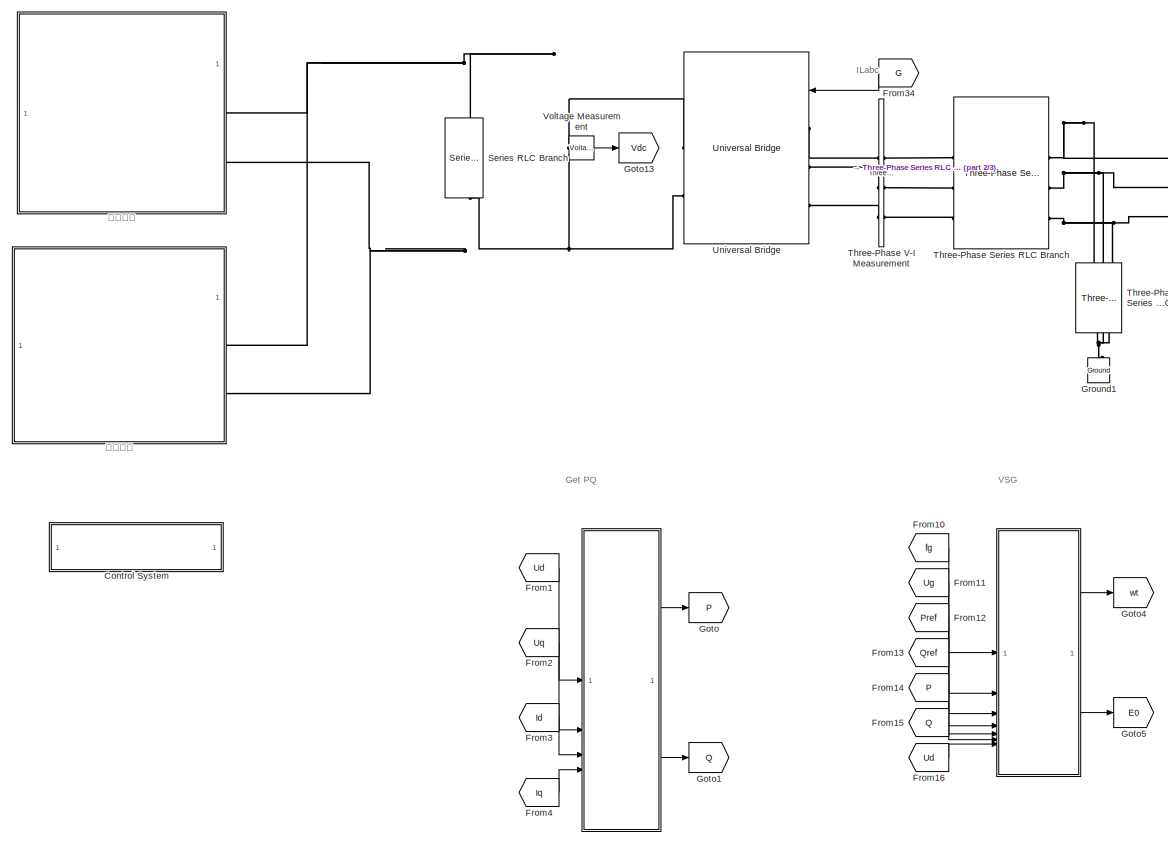
[diagram: root canvas - part 1/3, center side, full height]
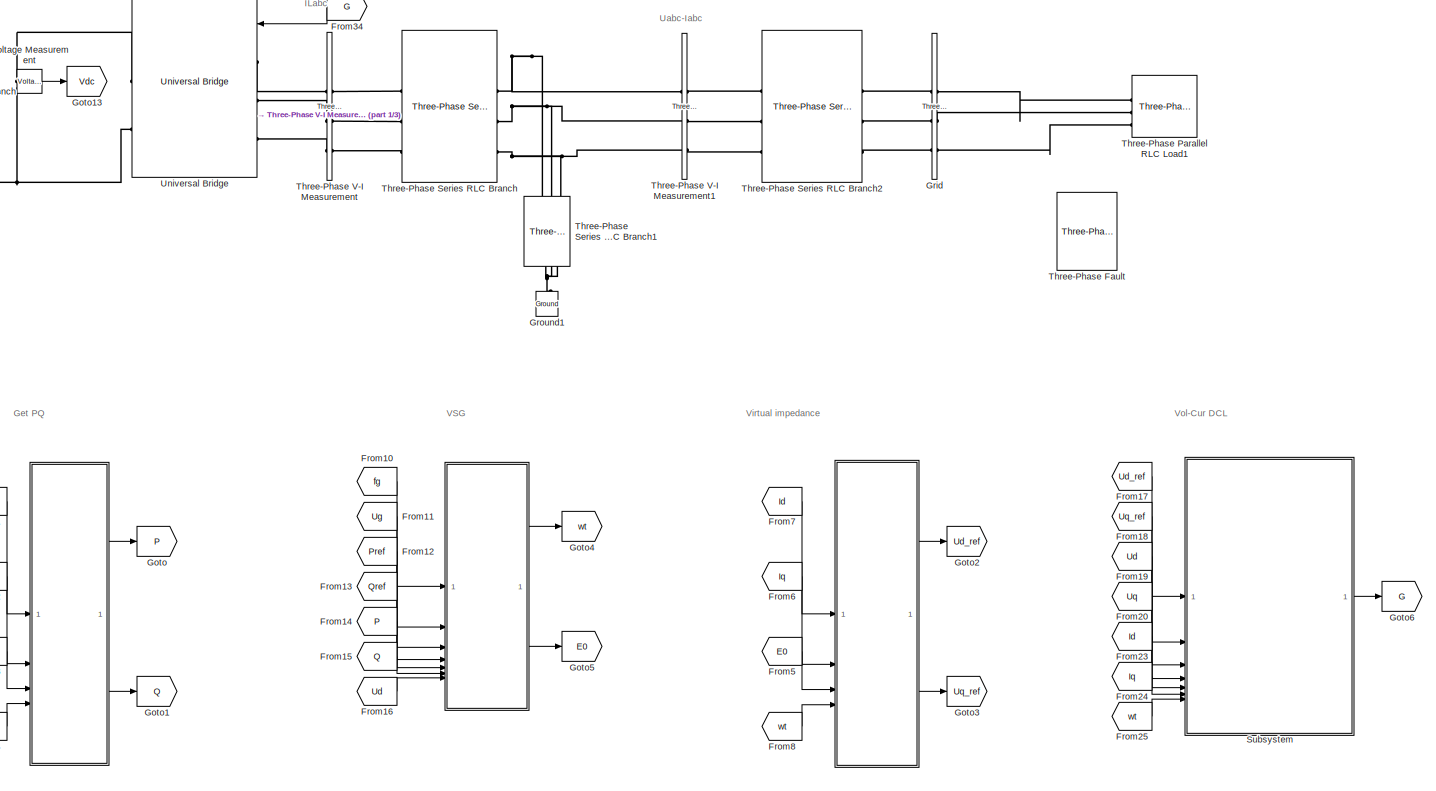
[diagram: root canvas - part 2/3, right side, full height]
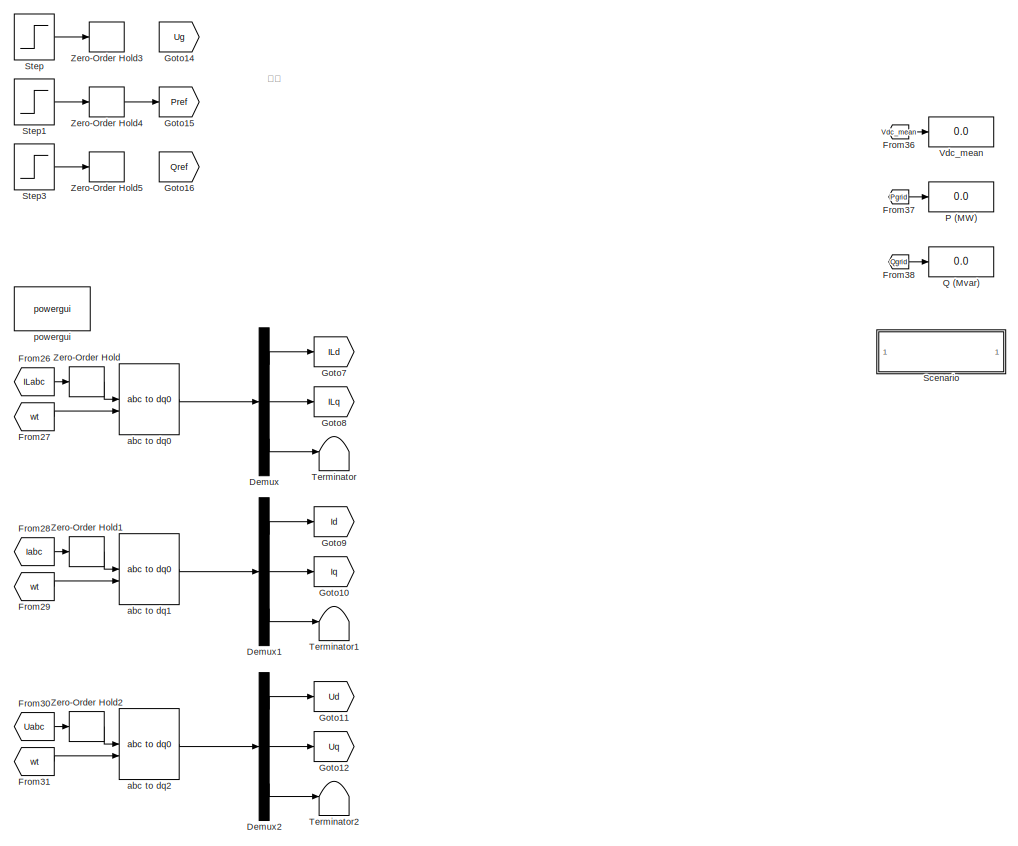
[diagram: root canvas - part 3/3, left side, full height]
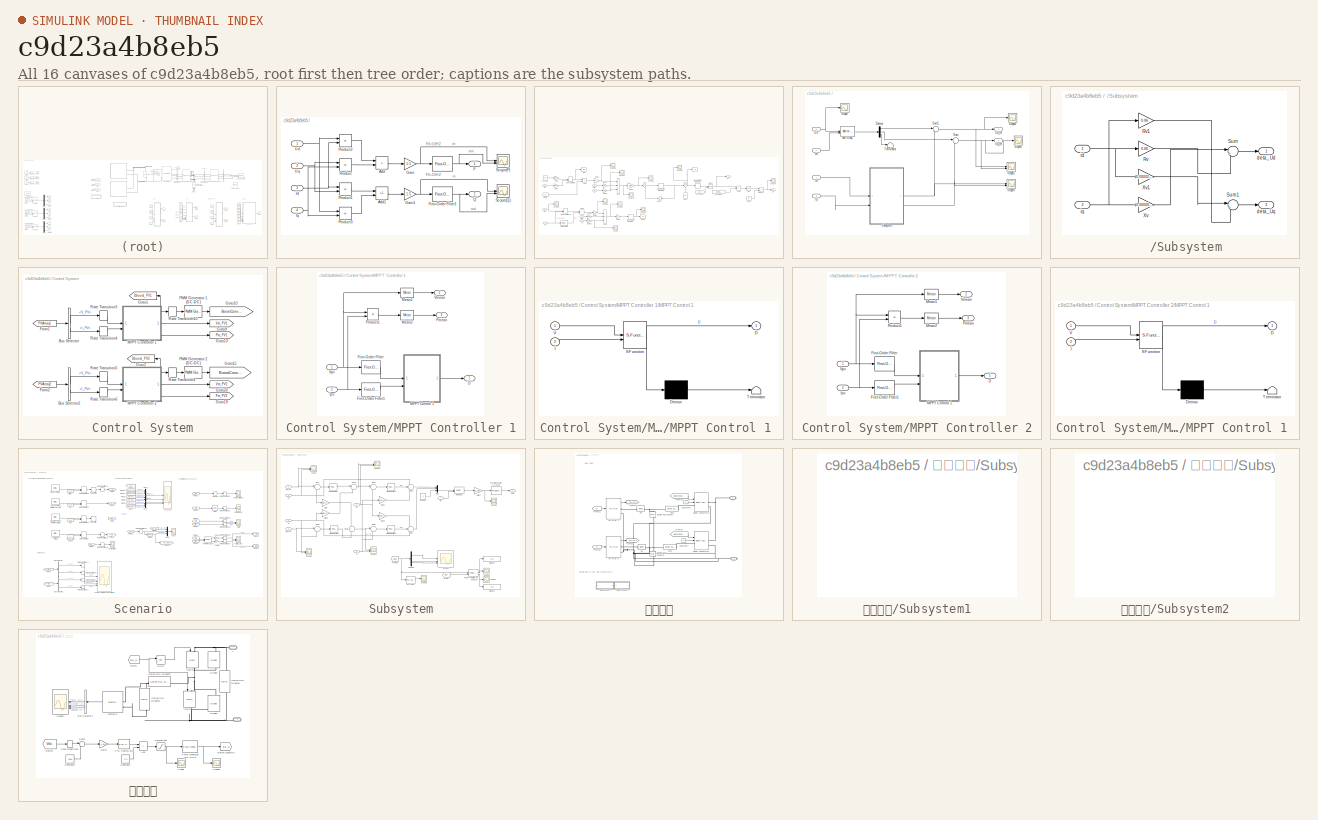
[diagram: thumbnail index - all 16 canvases of the model, root first then tree order]
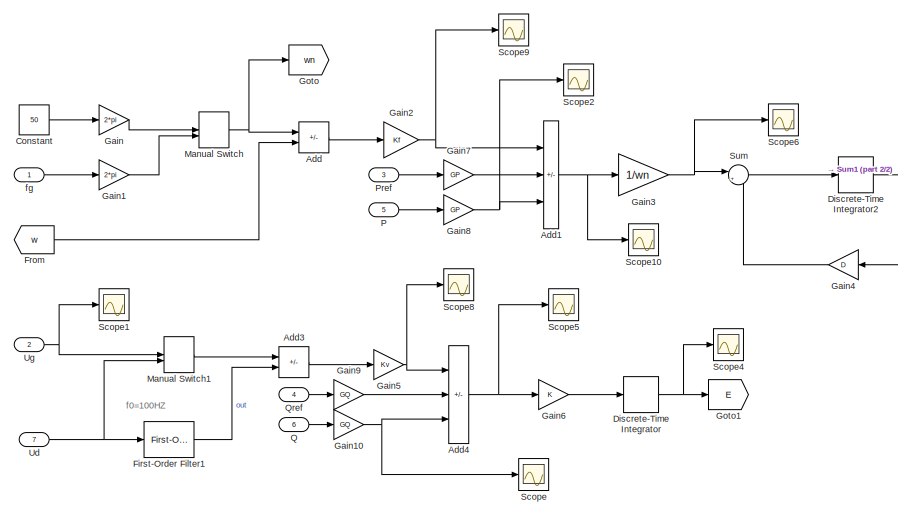
[diagram:    - part 1/2, left side, full height]
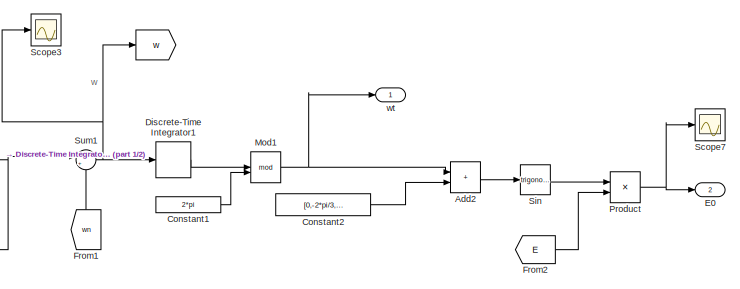
[diagram:    - part 2/2, middle right region]
MODEL slx_c9d23a4b8eb5
KIND model
CONFIG AbsTol = auto
CONFIG EnableMultiTasking = off
CONFIG FixedStep = 1e-6
CONFIG MaxStep = auto
CONFIG MinStep = auto
CONFIG RelTol = 1e-3
CONFIG SampleTimeConstraint = Unconstrained
CONFIG SolverName = FixedStepAuto
CONFIG StartTime = 0.0
CONFIG StopTime = 2
WORKSPACE source: mxarray member
WORKSPACE C = 0.0003
WORKSPACE D = 500
WORKSPACE GP = 0.6
WORKSPACE GQ = 20
WORKSPACE J = 2
WORKSPACE KQ = 0.06
WORKSPACE Kf = 80000
WORKSPACE Kv = 577
WORKSPACE L = 0.001
WORKSPACE Pref = 2000000
WORKSPACE Qref = 0
WORKSPACE Ts = 0.0001
WORKSPACE Ts_Power = 1e-06
WORKSPACE Ug = 400
WORKSPACE Vdc = 1000
WORKSPACE fsw = 20000
WORKSPACE t0 = 0.5
WORKSPACE tco = 1.3
WORKSPACE tf = 1.2
WORKSPACE wn = 314.159265359
BLOCK [SubSystem]  
BLOCK [SubSystem]   
BLOCK [SubSystem]    
BLOCK [Demux]    /Demux
  Outputs = 3
BLOCK [Inport]    /E0
  Description = Cont
  Port = 3
BLOCK [Inport]    /Id
BLOCK [Inport]    /Iq
  Port = 2
BLOCK [Scope]    /Scope
  Floating = off
  NumInputPorts = 1
  ScopeSpecificationString = Simulink.scopes.TimeScopeBlockCfg('CurrentConfiguration', extmgr.ConfigurationSet(extmgr.Configuration('Core','General UI',true),extmgr.Configuration('Core','Source UI',true),extmgr.Configuration('Sources','WiredSimulink',true),extmgr.Configuration('Visuals','Time Domain',true,'SerializedDisplays',{struct('MinYLimReal','-749.46903','MaxYLimReal','749.46397','YLabelReal','','MinYLimMag',' 0.00000',...<+1352ch>
BLOCK [Scope]    /Scope1
  Floating = off
  NumInputPorts = 2
  ScopeSpecificationString = Simulink.scopes.TimeScopeBlockCfg('CurrentConfiguration', extmgr.ConfigurationSet(extmgr.Configuration('Core','General UI',true),extmgr.Configuration('Core','Source UI',true),extmgr.Configuration('Sources','WiredSimulink',true,'DataLoggingVariableName','ScopeData1'),extmgr.Configuration('Visuals','Time Domain',true,'SerializedDisplays',{struct('MinYLimReal','-3363.40131','MaxYLimReal','3214.4683',...<+1389ch>
BLOCK [Scope]    /Scope2
  Floating = off
  NumInputPorts = 1
  ScopeSpecificationString = Simulink.scopes.TimeScopeBlockCfg('CurrentConfiguration', extmgr.ConfigurationSet(extmgr.Configuration('Core','General UI',true),extmgr.Configuration('Core','Source UI',true),extmgr.Configuration('Sources','WiredSimulink',true,'DataLoggingVariableName','ScopeData3'),extmgr.Configuration('Visuals','Time Domain',true,'SerializedDisplays',{struct('MinYLimReal','-261.84251','MaxYLimReal','1761.16129',...<+1410ch>
BLOCK [Scope]    /Scope3
  Floating = off
  NumInputPorts = 2
  ScopeSpecificationString = Simulink.scopes.TimeScopeBlockCfg('CurrentConfiguration', extmgr.ConfigurationSet(extmgr.Configuration('Core','General UI',true),extmgr.Configuration('Core','Source UI',true),extmgr.Configuration('Sources','WiredSimulink',true,'DataLoggingVariableName','ScopeData3'),extmgr.Configuration('Visuals','Time Domain',true),extmgr.Configuration('Tools','Plot Navigation',true),extmgr.Configuration('Tools',...<+58ch>
BLOCK [Scope]    /Scope4
  Floating = off
  NumInputPorts = 1
  ScopeSpecificationString = Simulink.scopes.TimeScopeBlockCfg('CurrentConfiguration', extmgr.ConfigurationSet(extmgr.Configuration('Core','General UI',true),extmgr.Configuration('Core','Source UI',true),extmgr.Configuration('Sources','WiredSimulink',true,'DataLoggingVariableName','ScopeData4'),extmgr.Configuration('Visuals','Time Domain',true),extmgr.Configuration('Tools','Plot Navigation',true),extmgr.Configuration('Tools',...<+40ch>
BLOCK [SubSystem]    /Subsystem
BLOCK [Gain]    /Subsystem/Rv
  Gain = 0.06
BLOCK [Gain]    /Subsystem/Rv1
  Gain = 0.06
BLOCK [Sum]    /Subsystem/Sum
  Inputs = |+-
BLOCK [Sum]    /Subsystem/Sum1
  Inputs = |++
BLOCK [Gain]    /Subsystem/Xv
  Gain = 0.000002*100*pi
BLOCK [Gain]    /Subsystem/Xv1
  Gain = 0.00002*100*pi
BLOCK [Outport]    /Subsystem/deta_Ud
BLOCK [Outport]    /Subsystem/deta_Uq
  Port = 2
BLOCK [Inport]    /Subsystem/id
BLOCK [Inport]    /Subsystem/iq
  Port = 2
BLOCK [Sum]    /Sum
  Inputs = |+-
BLOCK [Sum]    /Sum1
  Inputs = |++
BLOCK [Terminator]    /Terminator
BLOCK [Outport]    /Ud_ref
BLOCK [Outport]    /Uq_ref
  Port = 2
BLOCK [Reference]    /abc to dq1  REF=spsabctodq0Lib/abc to dq0
  LibrarySourceBlock = sps_lib/Control/abc to dq0
  SourceBlock = spsabctodq0Lib/abc to dq0
  SourceType = abc to dq0 Transformation
BLOCK [Inport]    /wt
  Port = 4
BLOCK [Goto]   / 
  GotoTag = w
BLOCK [Sum]   /Add
  IconShape = rectangular
  Inputs = +-
BLOCK [Sum]   /Add1
  IconShape = rectangular
  Inputs = ++-
BLOCK [Sum]   /Add2
  IconShape = rectangular
BLOCK [Sum]   /Add3
  IconShape = rectangular
  Inputs = +-
BLOCK [Sum]   /Add4
  IconShape = rectangular
  Inputs = ++-
BLOCK [Constant]   /Constant
  Value = 50
BLOCK [Constant]   /Constant1
  Value = 2*pi
BLOCK [Constant]   /Constant2
  Value = [0,-2*pi/3,2*pi/3]
BLOCK [DiscreteIntegrator]   /Discrete-Time Integrator
  ICPrevOutput = DiscIntNeverNeededParam
  ICPrevScaledInput = DiscIntNeverNeededParam
  InitialConditionSetting = Auto
  SampleTime = 1/fsw
  gainval = KQ
BLOCK [DiscreteIntegrator]   /Discrete-Time Integrator1
  ICPrevOutput = DiscIntNeverNeededParam
  ICPrevScaledInput = DiscIntNeverNeededParam
  InitialConditionSetting = Auto
  SampleTime = 1/fsw
BLOCK [DiscreteIntegrator]   /Discrete-Time Integrator2
  ICPrevOutput = DiscIntNeverNeededParam
  ICPrevScaledInput = DiscIntNeverNeededParam
  InitialConditionSetting = Auto
  SampleTime = 1/fsw
  gainval = 1/J
BLOCK [Outport]   /E0
  Port = 2
BLOCK [Reference]   /First-Order Filter1  REF=spsFirstOrderFilterLib/First-Order
Filter
  LibrarySourceBlock = sps_lib/Control/Filters/First-Order\nFilter
  SourceBlock = spsFirstOrderFilterLib/First-Order\nFilter
  SourceType = First-Order Filter
BLOCK [From]   /From
  GotoTag = w
BLOCK [From]   /From1
  GotoTag = wn
  NameLocation = right
BLOCK [From]   /From2
  GotoTag = E
BLOCK [Gain]   /Gain
  Gain = 2*pi
BLOCK [Gain]   /Gain1
  Gain = 2*pi
BLOCK [Gain]   /Gain10
  Gain = GQ
BLOCK [Gain]   /Gain2
  Gain = Kf
BLOCK [Gain]   /Gain3
  Gain = 1/wn
BLOCK [Gain]   /Gain4
  Gain = D
BLOCK [Gain]   /Gain5
  Gain = Kv
BLOCK [Gain]   /Gain6
BLOCK [Gain]   /Gain7
  Gain = GP
BLOCK [Gain]   /Gain8
  Gain = GP
BLOCK [Gain]   /Gain9
  Gain = GQ
BLOCK [Goto]   /Goto
  GotoTag = wn
BLOCK [Goto]   /Goto1
  GotoTag = E
BLOCK [ManualSwitch]   /Manual Switch
BLOCK [ManualSwitch]   /Manual Switch1
BLOCK [Math]   /Mod1
  Operator = mod
BLOCK [Inport]   /P
  Port = 5
BLOCK [Inport]   /Pref
  Port = 3
BLOCK [Product]   /Product
BLOCK [Inport]   /Q
  Port = 6
BLOCK [Inport]   /Qref
  Port = 4
BLOCK [Scope]   /Scope
  Floating = off
  NumInputPorts = 1
  ScopeSpecificationString = Simulink.scopes.TimeScopeBlockCfg('CurrentConfiguration', extmgr.ConfigurationSet(extmgr.Configuration('Core','General UI',true),extmgr.Configuration('Core','Source UI',true),extmgr.Configuration('Sources','WiredSimulink',true),extmgr.Configuration('Visuals','Time Domain',true,'SerializedDisplays',{struct('MinYLimReal','-1590374.99728','MaxYLimReal','732109.33048','YLabelReal','','MinYLimMag','   ...<+1453ch>
BLOCK [Scope]   /Scope1
  Floating = off
  NumInputPorts = 1
  ScopeSpecificationString = Simulink.scopes.TimeScopeBlockCfg('CurrentConfiguration', extmgr.ConfigurationSet(extmgr.Configuration('Core','General UI',true),extmgr.Configuration('Core','Source UI',true),extmgr.Configuration('Sources','WiredSimulink',true,'DataLoggingVariableName','ScopeData2'),extmgr.Configuration('Visuals','Time Domain',true,'SerializedDisplays',{struct('MinYLimReal','556.27973','MaxYLimReal','567.75726','Y...<+1458ch>
BLOCK [Scope]   /Scope10
  Floating = off
  NumInputPorts = 1
  ScopeSpecificationString = Simulink.scopes.TimeScopeBlockCfg('CurrentConfiguration', extmgr.ConfigurationSet(extmgr.Configuration('Core','General UI',true),extmgr.Configuration('Core','Source UI',true),extmgr.Configuration('Sources','WiredSimulink',true,'DataLoggingVariableName','ScopeData8'),extmgr.Configuration('Visuals','Time Domain',true,'SerializedDisplays',{struct('MinYLimReal','-29910.46347','MaxYLimReal','225526.568...<+1432ch>
BLOCK [Scope]   /Scope2
  Floating = off
  NumInputPorts = 1
  ScopeSpecificationString = Simulink.scopes.TimeScopeBlockCfg('CurrentConfiguration', extmgr.ConfigurationSet(extmgr.Configuration('Core','General UI',true),extmgr.Configuration('Core','Source UI',true),extmgr.Configuration('Sources','WiredSimulink',true,'DataLoggingVariableName','ScopeData2'),extmgr.Configuration('Visuals','Time Domain',true,'SerializedDisplays',{struct('MinYLimReal','-152.71549','MaxYLimReal','1374.43939',...<+1401ch>
BLOCK [Scope]   /Scope3
  Floating = off
  NumInputPorts = 1
  ScopeSpecificationString = Simulink.scopes.TimeScopeBlockCfg('CurrentConfiguration', extmgr.ConfigurationSet(extmgr.Configuration('Core','General UI',true),extmgr.Configuration('Core','Source UI',true),extmgr.Configuration('Sources','WiredSimulink',true,'DataLoggingVariableName','ScopeData3'),extmgr.Configuration('Visuals','Time Domain',true,'SerializedDisplays',{struct('MinYLimReal','304.49586','MaxYLimReal','389.60553','Y...<+1427ch>
BLOCK [Scope]   /Scope4
  Floating = off
  NumInputPorts = 1
  ScopeSpecificationString = Simulink.scopes.TimeScopeBlockCfg('CurrentConfiguration', extmgr.ConfigurationSet(extmgr.Configuration('Core','General UI',true),extmgr.Configuration('Core','Source UI',true),extmgr.Configuration('Sources','WiredSimulink',true,'DataLoggingVariableName','ScopeData4'),extmgr.Configuration('Visuals','Time Domain',true,'SerializedDisplays',{struct('MinYLimReal','-74.96486','MaxYLimReal','674.68371','Y...<+1393ch>
BLOCK [Scope]   /Scope5
  Floating = off
  NumInputPorts = 1
  ScopeSpecificationString = Simulink.scopes.TimeScopeBlockCfg('CurrentConfiguration', extmgr.ConfigurationSet(extmgr.Configuration('Core','General UI',true),extmgr.Configuration('Core','Source UI',true),extmgr.Configuration('Sources','WiredSimulink',true,'DataLoggingVariableName','ScopeData3'),extmgr.Configuration('Visuals','Time Domain',true,'SerializedDisplays',{struct('MinYLimReal','-7834420.56273','MaxYLimReal','6689537....<+1438ch>
BLOCK [Scope]   /Scope6
  Floating = off
  NumInputPorts = 1
  ScopeSpecificationString = Simulink.scopes.TimeScopeBlockCfg('CurrentConfiguration', extmgr.ConfigurationSet(extmgr.Configuration('Core','General UI',true),extmgr.Configuration('Core','Source UI',true),extmgr.Configuration('Sources','WiredSimulink',true,'DataLoggingVariableName','ScopeData4'),extmgr.Configuration('Visuals','Time Domain',true,'SerializedDisplays',{struct('MinYLimReal','-147.73046','MaxYLimReal','202.19448','...<+1378ch>
BLOCK [Scope]   /Scope7
  Floating = off
  NumInputPorts = 1
  ScopeSpecificationString = Simulink.scopes.TimeScopeBlockCfg('CurrentConfiguration', extmgr.ConfigurationSet(extmgr.Configuration('Core','General UI',true),extmgr.Configuration('Core','Source UI',true),extmgr.Configuration('Sources','WiredSimulink',true,'DataLoggingVariableName','ScopeData5'),extmgr.Configuration('Visuals','Time Domain',true,'SerializedDisplays',{struct('MinYLimReal','-2050.02752','MaxYLimReal','2049.51479'...<+1485ch>
BLOCK [Scope]   /Scope8
  Floating = off
  NumInputPorts = 1
  ScopeSpecificationString = Simulink.scopes.TimeScopeBlockCfg('CurrentConfiguration', extmgr.ConfigurationSet(extmgr.Configuration('Core','General UI',true),extmgr.Configuration('Core','Source UI',true),extmgr.Configuration('Sources','WiredSimulink',true,'DataLoggingVariableName','ScopeData6'),extmgr.Configuration('Visuals','Time Domain',true,'SerializedDisplays',{struct('MinYLimReal','-178637.79274','MaxYLimReal','436546.10...<+1402ch>
BLOCK [Scope]   /Scope9
  Floating = off
  NumInputPorts = 1
  ScopeSpecificationString = Simulink.scopes.TimeScopeBlockCfg('CurrentConfiguration', extmgr.ConfigurationSet(extmgr.Configuration('Core','General UI',true),extmgr.Configuration('Core','Source UI',true),extmgr.Configuration('Sources','WiredSimulink',true,'DataLoggingVariableName','ScopeData7'),extmgr.Configuration('Visuals','Time Domain',true,'SerializedDisplays',{struct('MinYLimReal','-74841.31634','MaxYLimReal','12675.9902...<+1413ch>
BLOCK [Trigonometry]   /Sin
BLOCK [Sum]   /Sum
  Inputs = |+-
BLOCK [Sum]   /Sum1
  Inputs = |++
BLOCK [Inport]   /Ud
  Port = 7
BLOCK [Inport]   /Ug
  Port = 2
BLOCK [Inport]   /fg
BLOCK [Outport]   /wt
BLOCK [Reference]  /   REF=spsFirstOrderFilterLib/First-Order
Filter
  LibrarySourceBlock = sps_lib/Control/Filters/First-Order\nFilter
  SourceBlock = spsFirstOrderFilterLib/First-Order\nFilter
  SourceType = First-Order Filter
BLOCK [Sum]  /Add
  IconShape = rectangular
BLOCK [Sum]  /Add1
  IconShape = rectangular
  Inputs = +-
BLOCK [Reference]  /First-Order Filter1  REF=spsFirstOrderFilterLib/First-Order
Filter
  LibrarySourceBlock = sps_lib/Control/Filters/First-Order\nFilter
  SourceBlock = spsFirstOrderFilterLib/First-Order\nFilter
  SourceType = First-Order Filter
BLOCK [Gain]  /Gain
  Gain = 1.5
BLOCK [Gain]  /Gain1
  Gain = 1.5
BLOCK [Inport]  /Id
  Port = 3
BLOCK [Inport]  /Iq
  Port = 4
BLOCK [Outport]  /P
BLOCK [Product]  /Product
BLOCK [Product]  /Product1
BLOCK [Product]  /Product2
BLOCK [Product]  /Product3
BLOCK [Outport]  /Q
  Port = 2
BLOCK [Scope]  /Scope(P)
  Floating = off
  NumInputPorts = 2
  ScopeSpecificationString = Simulink.scopes.TimeScopeBlockCfg('CurrentConfiguration', extmgr.ConfigurationSet(extmgr.Configuration('Core','General UI',true),extmgr.Configuration('Core','Source UI',true),extmgr.Configuration('Sources','WiredSimulink',true,'DataLoggingVariableName','ScopeData1'),extmgr.Configuration('Visuals','Time Domain',true),extmgr.Configuration('Tools','Plot Navigation',true),extmgr.Configuration('Tools',...<+58ch>
BLOCK [Scope]  /Scope(Q)
  Floating = off
  NumInputPorts = 2
  ScopeSpecificationString = Simulink.scopes.TimeScopeBlockCfg('CurrentConfiguration', extmgr.ConfigurationSet(extmgr.Configuration('Core','General UI',true),extmgr.Configuration('Core','Source UI',true),extmgr.Configuration('Sources','WiredSimulink',true),extmgr.Configuration('Visuals','Time Domain',true,'SerializedDisplays',{struct('MinYLimReal','-67310.48556','MaxYLimReal','51991.39138','YLabelReal','','MinYLimMag','   0.0...<+1391ch>
BLOCK [Inport]  /Ud
BLOCK [Inport]  /Uq
  Port = 2
BLOCK [SubSystem] Control System
BLOCK [BusSelector] Control System/Bus Selector
  OutputSignals = V_PV,I_PV
BLOCK [BusSelector] Control System/Bus Selector2
  OutputSignals = V_PV,I_PV
BLOCK [From] Control System/From1
  GotoTag = PVArray1
  TagVisibility = global
BLOCK [From] Control System/From2
  GotoTag = PVArray2
  TagVisibility = global
BLOCK [Goto] Control System/Goto1
  GotoTag = Dboost_PV1
  TagVisibility = global
BLOCK [Goto] Control System/Goto10
  GotoTag = BoostConverter1
  TagVisibility = global
BLOCK [Goto] Control System/Goto13
  GotoTag = Pm_PV1
  TagVisibility = global
BLOCK [Goto] Control System/Goto15
  GotoTag = BoostConverter2
  TagVisibility = global
BLOCK [Goto] Control System/Goto19
  GotoTag = Pm_PV2
  TagVisibility = global
BLOCK [Goto] Control System/Goto2
  GotoTag = Dboost_PV2
  TagVisibility = global
BLOCK [Goto] Control System/Goto20
  GotoTag = Vm_PV2
  TagVisibility = global
BLOCK [Goto] Control System/Goto9
  GotoTag = Vm_PV1
  TagVisibility = global
BLOCK [SubSystem] Control System/MPPT Controller 1
BLOCK [Outport] Control System/MPPT Controller 1/D
  VectorParamsAs1DForOutWhenUnconnected = off
BLOCK [Reference] Control System/MPPT Controller 1/First-Order Filter  REF=spsFirstOrderFilterLib/First-Order
Filter
  LibrarySourceBlock = sps_lib/Control/Filters/First-Order\nFilter
  SourceBlock = spsFirstOrderFilterLib/First-Order\nFilter
  SourceType = First-Order Filter
BLOCK [Reference] Control System/MPPT Controller 1/First-Order Filter1  REF=spsFirstOrderFilterLib/First-Order
Filter
  LibrarySourceBlock = sps_lib/Control/Filters/First-Order\nFilter
  SourceBlock = spsFirstOrderFilterLib/First-Order\nFilter
  SourceType = First-Order Filter
BLOCK [Inport] Control System/MPPT Controller 1/Ipv
  Port = 2
BLOCK [SubSystem] Control System/MPPT Controller 1/MPPT Control 1 
  ErrorFcn = Stateflow.Translate.translate
  NameLocation = top
  PermitHierarchicalResolution = ExplicitOnly
  SFBlockType = MATLAB Function
  TreatAsAtomicUnit = on
BLOCK [Demux] Control System/MPPT Controller 1/MPPT Control 1 / Demux 
  Outputs = 1
BLOCK [S-Function] Control System/MPPT Controller 1/MPPT Control 1 / SFunction 
  EnableBusSupport = on
  FunctionName = sf_sfun
  Parameters = Dinit,Dmax,Dmin,deltaD
  PortCounts = [2 2]
  SFcnIsStateOwnerBlock = off
  SFunctionDeploymentMode = off
  Tag = Stateflow S-Function 1
BLOCK [Terminator] Control System/MPPT Controller 1/MPPT Control 1 / Terminator 
BLOCK [Outport] Control System/MPPT Controller 1/MPPT Control 1 /D
  VectorParamsAs1DForOutWhenUnconnected = off
BLOCK [Inport] Control System/MPPT Controller 1/MPPT Control 1 /I
  Port = 2
BLOCK [Inport] Control System/MPPT Controller 1/MPPT Control 1 /V
BLOCK [Reference] Control System/MPPT Controller 1/Mean1  REF=spsMeanLib/Mean
  LibrarySourceBlock = sps_lib/Sensors and Measurements/Mean
  SourceBlock = spsMeanLib/Mean
  SourceType = Mean
BLOCK [Reference] Control System/MPPT Controller 1/Mean2  REF=spsMeanLib/Mean
  LibrarySourceBlock = sps_lib/Sensors and Measurements/Mean
  SourceBlock = spsMeanLib/Mean
  SourceType = Mean
BLOCK [Outport] Control System/MPPT Controller 1/Pmean
  Port = 3
  VectorParamsAs1DForOutWhenUnconnected = off
BLOCK [Product] Control System/MPPT Controller 1/Product1
BLOCK [Outport] Control System/MPPT Controller 1/Vmean
  Port = 2
  VectorParamsAs1DForOutWhenUnconnected = off
BLOCK [Inport] Control System/MPPT Controller 1/Vpv
BLOCK [SubSystem] Control System/MPPT Controller 2
BLOCK [Outport] Control System/MPPT Controller 2/D
  VectorParamsAs1DForOutWhenUnconnected = off
BLOCK [Reference] Control System/MPPT Controller 2/First-Order Filter  REF=spsFirstOrderFilterLib/First-Order
Filter
  LibrarySourceBlock = sps_lib/Control/Filters/First-Order\nFilter
  SourceBlock = spsFirstOrderFilterLib/First-Order\nFilter
  SourceType = First-Order Filter
BLOCK [Reference] Control System/MPPT Controller 2/First-Order Filter1  REF=spsFirstOrderFilterLib/First-Order
Filter
  LibrarySourceBlock = sps_lib/Control/Filters/First-Order\nFilter
  SourceBlock = spsFirstOrderFilterLib/First-Order\nFilter
  SourceType = First-Order Filter
BLOCK [Inport] Control System/MPPT Controller 2/Ipv
  Port = 2
BLOCK [SubSystem] Control System/MPPT Controller 2/MPPT Control 1 
  ErrorFcn = Stateflow.Translate.translate
  NameLocation = top
  PermitHierarchicalResolution = ExplicitOnly
  SFBlockType = MATLAB Function
  TreatAsAtomicUnit = on
BLOCK [Demux] Control System/MPPT Controller 2/MPPT Control 1 / Demux 
  Outputs = 1
BLOCK [S-Function] Control System/MPPT Controller 2/MPPT Control 1 / SFunction 
  EnableBusSupport = on
  FunctionName = sf_sfun
  Parameters = Dinit,Dmax,Dmin,deltaD
  PortCounts = [2 2]
  SFcnIsStateOwnerBlock = off
  SFunctionDeploymentMode = off
  Tag = Stateflow S-Function 4
BLOCK [Terminator] Control System/MPPT Controller 2/MPPT Control 1 / Terminator 
BLOCK [Outport] Control System/MPPT Controller 2/MPPT Control 1 /D
  VectorParamsAs1DForOutWhenUnconnected = off
BLOCK [Inport] Control System/MPPT Controller 2/MPPT Control 1 /I
  Port = 2
BLOCK [Inport] Control System/MPPT Controller 2/MPPT Control 1 /V
BLOCK [Reference] Control System/MPPT Controller 2/Mean1  REF=spsMeanLib/Mean
  LibrarySourceBlock = sps_lib/Sensors and Measurements/Mean
  SourceBlock = spsMeanLib/Mean
  SourceType = Mean
BLOCK [Reference] Control System/MPPT Controller 2/Mean2  REF=spsMeanLib/Mean
  LibrarySourceBlock = sps_lib/Sensors and Measurements/Mean
  SourceBlock = spsMeanLib/Mean
  SourceType = Mean
BLOCK [Outport] Control System/MPPT Controller 2/Pmean
  Port = 3
  VectorParamsAs1DForOutWhenUnconnected = off
BLOCK [Product] Control System/MPPT Controller 2/Product1
BLOCK [Outport] Control System/MPPT Controller 2/Vmean
  Port = 2
  VectorParamsAs1DForOutWhenUnconnected = off
BLOCK [Inport] Control System/MPPT Controller 2/Vpv
BLOCK [Reference] Control System/PWM Generator 1 (DC-DC)  REF=spsPWMGeneratorDCDCLib/PWM Generator
(DC-DC)
  LibrarySourceBlock = sps_lib/Power Electronics/Power Electronics Control/PWM Generator\n(DC-DC)
  NameLocation = top
  SourceBlock = spsPWMGeneratorDCDCLib/PWM Generator\n(DC-DC)
  SourceType = PWM Generator (DC-DC)
BLOCK [Reference] Control System/PWM Generator 2 (DC-DC)  REF=spsPWMGeneratorDCDCLib/PWM Generator
(DC-DC)
  LibrarySourceBlock = sps_lib/Power Electronics/Power Electronics Control/PWM Generator\n(DC-DC)
  NameLocation = top
  SourceBlock = spsPWMGeneratorDCDCLib/PWM Generator\n(DC-DC)
  SourceType = PWM Generator (DC-DC)
BLOCK [RateTransition] Control System/Rate Transition1
  OutPortSampleTime = Ts_Power
BLOCK [RateTransition] Control System/Rate Transition10
  OutPortSampleTime = Ts_Power
BLOCK [RateTransition] Control System/Rate Transition3
  OutPortSampleTime = Ts
BLOCK [RateTransition] Control System/Rate Transition4
  OutPortSampleTime = Ts
BLOCK [RateTransition] Control System/Rate Transition5
  OutPortSampleTime = Ts
BLOCK [RateTransition] Control System/Rate Transition6
  OutPortSampleTime = Ts
BLOCK [Demux] Demux
  Outputs = 3
BLOCK [Demux] Demux1
  Outputs = 3
BLOCK [Demux] Demux2
  Outputs = 3
BLOCK [From] From1
  GotoTag = Ud
BLOCK [From] From10
  GotoTag = fg
BLOCK [From] From11
  GotoTag = Ug
BLOCK [From] From12
  GotoTag = Pref
BLOCK [From] From13
  GotoTag = Qref
BLOCK [From] From14
  GotoTag = P
BLOCK [From] From15
  GotoTag = Q
BLOCK [From] From16
  GotoTag = Ud
BLOCK [From] From17
  GotoTag = Ud_ref
BLOCK [From] From18
  GotoTag = Uq_ref
BLOCK [From] From19
  GotoTag = Ud
BLOCK [From] From2
  GotoTag = Uq
BLOCK [From] From20
  GotoTag = Uq
BLOCK [From] From23
  GotoTag = Id
BLOCK [From] From24
  GotoTag = Iq
BLOCK [From] From25
  GotoTag = wt
BLOCK [From] From26
  GotoTag = ILabc
  TagVisibility = global
BLOCK [From] From27
  GotoTag = wt
BLOCK [From] From28
  GotoTag = Iabc
  TagVisibility = global
BLOCK [From] From29
  GotoTag = wt
BLOCK [From] From3
  GotoTag = Id
BLOCK [From] From30
  GotoTag = Uabc
  TagVisibility = global
BLOCK [From] From31
  GotoTag = wt
BLOCK [From] From34
  GotoTag = G
  NameLocation = top
BLOCK [From] From36
  GotoTag = Vdc_mean
  TagVisibility = global
BLOCK [From] From37
  GotoTag = Pgrid
  TagVisibility = global
BLOCK [From] From38
  GotoTag = Qgrid
  TagVisibility = global
BLOCK [From] From4
  GotoTag = Iq
BLOCK [From] From5
  GotoTag = E0
BLOCK [From] From6
  GotoTag = Iq
BLOCK [From] From7
  GotoTag = Id
BLOCK [From] From8
  GotoTag = wt
BLOCK [Goto] Goto
  GotoTag = P
BLOCK [Goto] Goto1
  GotoTag = Q
BLOCK [Goto] Goto10
  GotoTag = Iq
BLOCK [Goto] Goto11
  GotoTag = Ud
BLOCK [Goto] Goto12
  GotoTag = Uq
BLOCK [Goto] Goto13
  GotoTag = Vdc
BLOCK [Goto] Goto14
  GotoTag = Ug
BLOCK [Goto] Goto15
  GotoTag = Pref
BLOCK [Goto] Goto16
  GotoTag = Qref
BLOCK [Goto] Goto2
  GotoTag = Ud_ref
BLOCK [Goto] Goto3
  GotoTag = Uq_ref
BLOCK [Goto] Goto4
  GotoTag = wt
BLOCK [Goto] Goto5
  GotoTag = E0
BLOCK [Goto] Goto6
  GotoTag = G
BLOCK [Goto] Goto7
  GotoTag = ILd
BLOCK [Goto] Goto8
  GotoTag = ILq
BLOCK [Goto] Goto9
  GotoTag = Id
BLOCK [Reference] Grid  REF=spsThreePhaseVIMeasurementLib/Three-Phase
V-I Measurement
  LibrarySourceBlock = sps_lib/Sensors and Measurements/Three-Phase\nV-I Measurement
  SourceBlock = spsThreePhaseVIMeasurementLib/Three-Phase\nV-I Measurement
  SourceType = Three-Phase VI Measurement
BLOCK [Reference] Ground1  REF=spsGroundLib/Ground
  LibrarySourceBlock = sps_lib/Utilities/Ground
  NameLocation = right
  SourceBlock = spsGroundLib/Ground
  SourceType = Ground
BLOCK [Display] P (MW)
  Decimation = 200
  Format = bank
BLOCK [Display] Q (Mvar)
  Decimation = 200
  Format = bank
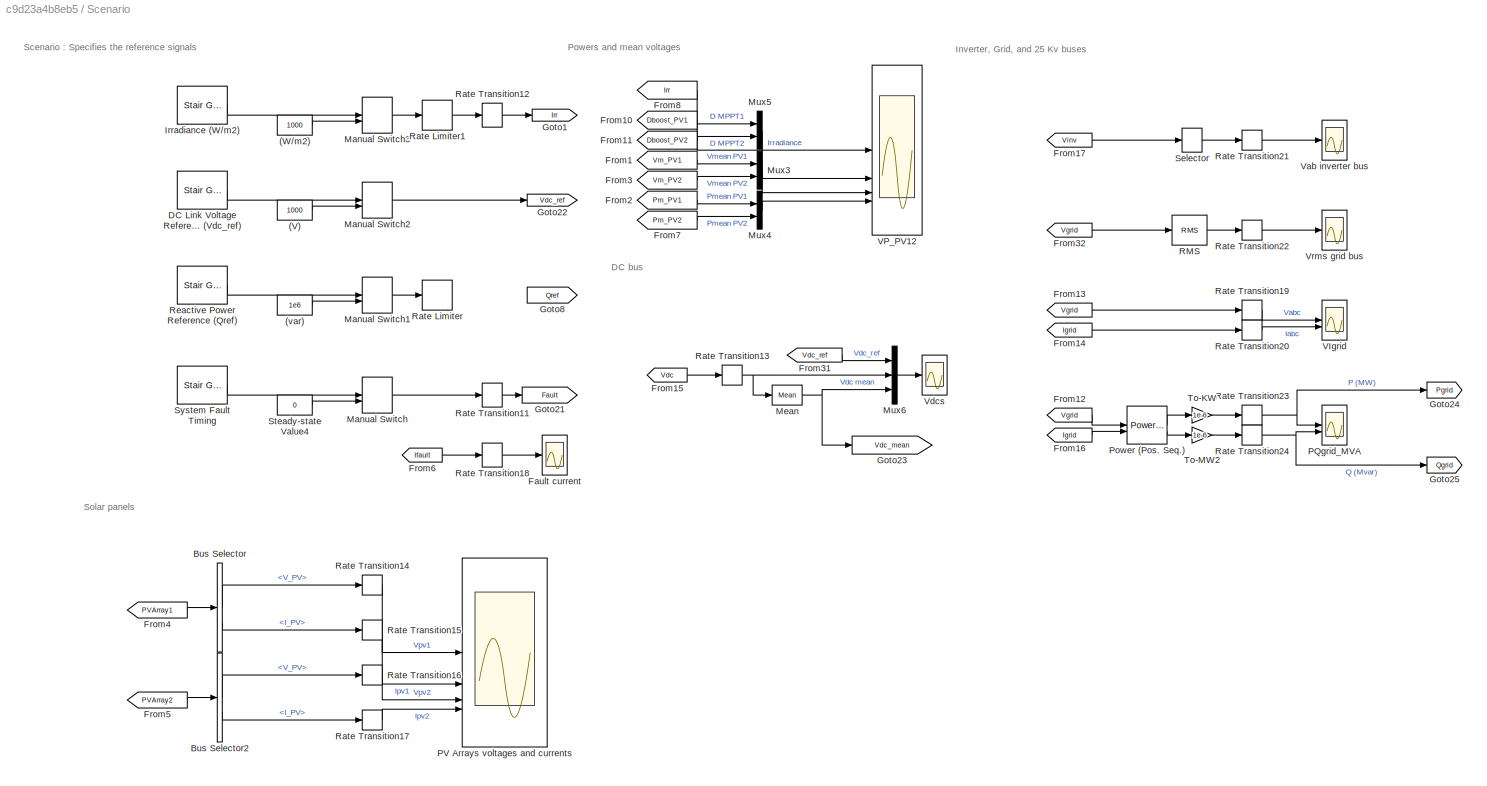
BLOCK [SubSystem] Scenario
BLOCK [Constant] Scenario/(V)
  Value = 1000
BLOCK [Constant] Scenario/(W//m2)
  Value = 1000
BLOCK [Constant] Scenario/(var)
  Value = 1e6
BLOCK [BusSelector] Scenario/Bus Selector
  OutputSignals = V_PV,I_PV
BLOCK [BusSelector] Scenario/Bus Selector2
  OutputSignals = V_PV,I_PV
BLOCK [Reference] Scenario/DC Link Voltage Reference (Vdc_ref)  REF=spsStairGeneratorLib/Stair
Generator
  LibrarySourceBlock = sps_lib/Sources/Signal Generator Sources/Stair\nGenerator
  SourceBlock = spsStairGeneratorLib/Stair\nGenerator
  SourceType = Stair Generator
BLOCK [Scope] Scenario/Fault current
  Floating = off
  NumInputPorts = 1
  ScopeSpecificationString = Simulink.scopes.TimeScopeBlockCfg('CurrentConfiguration', extmgr.ConfigurationSet(extmgr.Configuration('Core','General UI',true),extmgr.Configuration('Core','Source UI',true),extmgr.Configuration('Sources','WiredSimulink',true,'DataLoggingVariableName','ScopeData2','DataLoggingSaveFormat','StructureWithTime','DataLoggingDecimation','100','DataLogging',true),extmgr.Configuration('Visuals','Time Dom...<+1617ch>
BLOCK [From] Scenario/From1
  GotoTag = Vm_PV1
  TagVisibility = global
BLOCK [From] Scenario/From10
  GotoTag = Dboost_PV1
  TagVisibility = global
BLOCK [From] Scenario/From11
  GotoTag = Dboost_PV2
  TagVisibility = global
BLOCK [From] Scenario/From12
  GotoTag = Vgrid
  TagVisibility = global
BLOCK [From] Scenario/From13
  GotoTag = Vgrid
  TagVisibility = global
BLOCK [From] Scenario/From14
  GotoTag = Igrid
  TagVisibility = global
BLOCK [From] Scenario/From15
  GotoTag = Vdc
BLOCK [From] Scenario/From16
  GotoTag = Igrid
  TagVisibility = global
BLOCK [From] Scenario/From17
  GotoTag = Vinv
  TagVisibility = global
BLOCK [From] Scenario/From2
  GotoTag = Pm_PV1
  TagVisibility = global
BLOCK [From] Scenario/From3
  GotoTag = Vm_PV2
  TagVisibility = global
BLOCK [From] Scenario/From31
  GotoTag = Vdc_ref
  TagVisibility = global
BLOCK [From] Scenario/From32
  GotoTag = Vgrid
  TagVisibility = global
BLOCK [From] Scenario/From4
  GotoTag = PVArray1
  TagVisibility = global
BLOCK [From] Scenario/From5
  GotoTag = PVArray2
  TagVisibility = global
BLOCK [From] Scenario/From6
  GotoTag = Ifault
BLOCK [From] Scenario/From7
  GotoTag = Pm_PV2
  TagVisibility = global
BLOCK [From] Scenario/From8
  GotoTag = Irr
  TagVisibility = global
BLOCK [Goto] Scenario/Goto1
  GotoTag = Irr
  TagVisibility = global
BLOCK [Goto] Scenario/Goto21
  GotoTag = Fault
  TagVisibility = global
BLOCK [Goto] Scenario/Goto22
  GotoTag = Vdc_ref
  TagVisibility = global
BLOCK [Goto] Scenario/Goto23
  GotoTag = Vdc_mean
  TagVisibility = global
BLOCK [Goto] Scenario/Goto24
  GotoTag = Pgrid
  TagVisibility = global
BLOCK [Goto] Scenario/Goto25
  GotoTag = Qgrid
  TagVisibility = global
BLOCK [Goto] Scenario/Goto8
  GotoTag = Qref
  TagVisibility = global
BLOCK [Reference] Scenario/Irradiance (W//m2)  REF=spsStairGeneratorLib/Stair
Generator
  LibrarySourceBlock = sps_lib/Sources/Signal Generator Sources/Stair\nGenerator
  SourceBlock = spsStairGeneratorLib/Stair\nGenerator
  SourceType = Stair Generator
BLOCK [ManualSwitch] Scenario/Manual Switch
BLOCK [ManualSwitch] Scenario/Manual Switch1
  CurrentSetting = 0
BLOCK [ManualSwitch] Scenario/Manual Switch2
  CurrentSetting = 0
BLOCK [ManualSwitch] Scenario/Manual Switch3
  CurrentSetting = 0
BLOCK [Reference] Scenario/Mean  REF=spsMeanLib/Mean
  LibrarySourceBlock = sps_lib/Sensors and Measurements/Mean
  SourceBlock = spsMeanLib/Mean
  SourceType = Mean
BLOCK [Mux] Scenario/Mux3
  DisplayOption = bar
  Inputs = 2
BLOCK [Mux] Scenario/Mux4
  DisplayOption = bar
  Inputs = 2
BLOCK [Mux] Scenario/Mux5
  DisplayOption = bar
  Inputs = 2
BLOCK [Mux] Scenario/Mux6
  DisplayOption = bar
  Inputs = 3
BLOCK [Scope] Scenario/PQgrid_MVA
  Floating = off
  NumInputPorts = 2
  ScopeSpecificationString = Simulink.scopes.TimeScopeBlockCfg('CurrentConfiguration', extmgr.ConfigurationSet(extmgr.Configuration('Core','General UI',true),extmgr.Configuration('Core','Source UI',true),extmgr.Configuration('Sources','WiredSimulink',true,'DataLoggingVariableName','ScopeData4','DataLogging',true,'DataLoggingSaveFormat','StructureWithTime'),extmgr.Configuration('Visuals','Time Domain',true,'SerializedDisplays'...<+2166ch>
BLOCK [Scope] Scenario/PV Arrays voltages and currents
  Floating = off
  NumInputPorts = 4
  ScopeSpecificationString = Simulink.scopes.TimeScopeBlockCfg('CurrentConfiguration', extmgr.ConfigurationSet(extmgr.Configuration('Core','General UI',true),extmgr.Configuration('Core','Source UI',true),extmgr.Configuration('Sources','WiredSimulink',true,'DataLoggingVariableName','ScopeData6','DataLogging',true,'DataLoggingSaveFormat','StructureWithTime'),extmgr.Configuration('Visuals','Time Domain',true,'SerializedDisplays'...<+3542ch>
BLOCK [Reference] Scenario/Power (Pos. Seq.)  REF=spsPowerPositiveSequenceLib/Power
(Positive-Sequence)
  LibrarySourceBlock = sps_lib/Sensors and Measurements/Power\n(Positive-Sequence)
  SourceBlock = spsPowerPositiveSequenceLib/Power\n(Positive-Sequence)
  SourceType = Power (Positive-Sequence)
BLOCK [Reference] Scenario/RMS  REF=spsRMSLib/RMS
  LibrarySourceBlock = sps_lib/Sensors and Measurements/RMS
  SourceBlock = spsRMSLib/RMS
  SourceType = RMS
BLOCK [RateLimiter] Scenario/Rate Limiter
  FallingSlewLimit = -1e6/(1/60)
  InitialCondition = 1e6
  RisingSlewLimit = 1e6/(1/60)
  SampleTimeMode = inherited
BLOCK [RateLimiter] Scenario/Rate Limiter1
  FallingSlewLimit = -1000/(1/60)
  InitialCondition = 1000
  RisingSlewLimit = 1000/(1/60)
  SampleTimeMode = inherited
BLOCK [RateTransition] Scenario/Rate Transition11
  OutPortSampleTime = Ts_Power
BLOCK [RateTransition] Scenario/Rate Transition12
  OutPortSampleTime = Ts_Power
BLOCK [RateTransition] Scenario/Rate Transition13
  OutPortSampleTime = Ts
BLOCK [RateTransition] Scenario/Rate Transition14
  OutPortSampleTime = Ts
BLOCK [RateTransition] Scenario/Rate Transition15
  OutPortSampleTime = Ts
BLOCK [RateTransition] Scenario/Rate Transition16
  OutPortSampleTime = Ts
BLOCK [RateTransition] Scenario/Rate Transition17
  OutPortSampleTime = Ts
BLOCK [RateTransition] Scenario/Rate Transition18
  OutPortSampleTime = Ts
BLOCK [RateTransition] Scenario/Rate Transition19
  OutPortSampleTime = Ts
BLOCK [RateTransition] Scenario/Rate Transition20
  OutPortSampleTime = Ts
BLOCK [RateTransition] Scenario/Rate Transition21
  OutPortSampleTime = Ts
BLOCK [RateTransition] Scenario/Rate Transition22
  OutPortSampleTime = Ts
BLOCK [RateTransition] Scenario/Rate Transition23
  OutPortSampleTime = Ts
BLOCK [RateTransition] Scenario/Rate Transition24
  OutPortSampleTime = Ts
BLOCK [Reference] Scenario/Reactive Power Reference (Qref)   REF=spsStairGeneratorLib/Stair
Generator
  LibrarySourceBlock = sps_lib/Sources/Signal Generator Sources/Stair\nGenerator
  SourceBlock = spsStairGeneratorLib/Stair\nGenerator
  SourceType = Stair Generator
BLOCK [Selector] Scenario/Selector
  IndexOptions = Index vector (dialog)
  Indices = 1
  InputPortWidth = 3
  OutputSizes = 1
BLOCK [Constant] Scenario/Steady-state Value4
  Value = 0
BLOCK [Reference] Scenario/System Fault Timing  REF=spsStairGeneratorLib/Stair
Generator
  LibrarySourceBlock = sps_lib/Sources/Signal Generator Sources/Stair\nGenerator
  SourceBlock = spsStairGeneratorLib/Stair\nGenerator
  SourceType = Stair Generator
BLOCK [Gain] Scenario/To-KW
  Gain = 1e-6
  NameLocation = top
BLOCK [Gain] Scenario/To-MW2
  Gain = 1e-6
  NameLocation = top
BLOCK [Scope] Scenario/VIgrid
  Floating = off
  NumInputPorts = 2
  ScopeSpecificationString = Simulink.scopes.TimeScopeBlockCfg('CurrentConfiguration', extmgr.ConfigurationSet(extmgr.Configuration('Core','General UI',true),extmgr.Configuration('Core','Source UI',true),extmgr.Configuration('Sources','WiredSimulink',true,'DataLoggingVariableName','ScopeData8','DataLoggingSaveFormat','StructureWithTime','DataLoggingDecimation','100','DataLogging',true),extmgr.Configuration('Visuals','Time Dom...<+2216ch>
BLOCK [Scope] Scenario/VP_PV12
  Floating = off
  NumInputPorts = 4
  ScopeSpecificationString = Simulink.scopes.TimeScopeBlockCfg('CurrentConfiguration', extmgr.ConfigurationSet(extmgr.Configuration('Core','General UI',true),extmgr.Configuration('Core','Source UI',true),extmgr.Configuration('Sources','WiredSimulink',true,'DataLoggingVariableName','ScopeData9','DataLogging',true,'DataLoggingSaveFormat','StructureWithTime'),extmgr.Configuration('Visuals','Time Domain',true,'SerializedDisplays'...<+3665ch>
BLOCK [Scope] Scenario/Vab inverter bus
  Floating = off
  NumInputPorts = 1
  ScopeSpecificationString = Simulink.scopes.TimeScopeBlockCfg('CurrentConfiguration', extmgr.ConfigurationSet(extmgr.Configuration('Core','General UI',true),extmgr.Configuration('Core','Source UI',true),extmgr.Configuration('Sources','WiredSimulink',true,'DataLoggingVariableName','ScopeData10','DataLogging',true,'DataLoggingSaveFormat','StructureWithTime'),extmgr.Configuration('Visuals','Time Domain',true,'SerializedDisplays...<+1588ch>
BLOCK [Scope] Scenario/Vdcs
  Floating = off
  NumInputPorts = 1
  ScopeSpecificationString = Simulink.scopes.TimeScopeBlockCfg('CurrentConfiguration', extmgr.ConfigurationSet(extmgr.Configuration('Core','General UI',true),extmgr.Configuration('Core','Source UI',true),extmgr.Configuration('Sources','WiredSimulink',true,'DataLoggingVariableName','ScopeData11','DataLogging',true,'DataLoggingSaveFormat','StructureWithTime'),extmgr.Configuration('Visuals','Time Domain',true,'SerializedDisplays...<+1624ch>
BLOCK [Scope] Scenario/Vrms grid bus
  Floating = off
  NumInputPorts = 1
  ScopeSpecificationString = Simulink.scopes.TimeScopeBlockCfg('CurrentConfiguration', extmgr.ConfigurationSet(extmgr.Configuration('Core','General UI',true),extmgr.Configuration('Core','Source UI',true),extmgr.Configuration('Sources','WiredSimulink',true,'DataLogging',true,'DataLoggingSaveFormat','StructureWithTime'),extmgr.Configuration('Visuals','Time Domain',true,'SerializedDisplays',{struct('MinYLimReal','12016.34853','M...<+1553ch>
BLOCK [Reference] Series RLC Branch  REF=spsSeriesRLCBranchLib/Series RLC Branch
  LibrarySourceBlock = sps_lib/Passives/Series RLC Branch
  NameLocation = left
  SourceBlock = spsSeriesRLCBranchLib/Series RLC Branch
  SourceType = Series RLC Branch
BLOCK [Step] Step
  After = Ug
  Before = 1
  SampleTime = 0
  Time = t0
BLOCK [Step] Step1
  After = Pref
  SampleTime = 0
  Time = 0
BLOCK [Step] Step3
  After = Qref
  SampleTime = 0
  Time = 0
BLOCK [SubSystem] Subsystem
BLOCK [Constant] Subsystem/Constant
  Value = 0
BLOCK [Demux] Subsystem/Demux3
  Outputs = 3
BLOCK [Display] Subsystem/Display1
  Decimation = 1
BLOCK [Display] Subsystem/Display2
  Decimation = 1
BLOCK [From] Subsystem/From
  GotoTag = Iabc
  TagVisibility = global
BLOCK [From] Subsystem/From32
  GotoTag = Uabc
  TagVisibility = global
BLOCK [Gain] Subsystem/Gain
  Gain = wn*C
BLOCK [Gain] Subsystem/Gain1
  Gain = wn*L
BLOCK [Gain] Subsystem/Gain2
  Gain = 2/Vdc
BLOCK [Gain] Subsystem/Gain3
  Gain = wn*C
  NameLocation = top
BLOCK [Gain] Subsystem/Gain4
  Gain = wn*L
  NameLocation = top
BLOCK [Inport] Subsystem/Id
  Port = 5
BLOCK [Inport] Subsystem/Iq
  Port = 6
BLOCK [Mux] Subsystem/Mux
  DisplayOption = bar
  Inputs = 3
BLOCK [Reference] Subsystem/PID Controller  REF=slpidlib/PID Controller
  LibrarySourceBlock = simulink/Continuous/PID Controller
  SourceBlock = slpidlib/PID Controller
  SourceType = PID 1dof
BLOCK [Reference] Subsystem/PID Controller1  REF=slpidlib/PID Controller
  LibrarySourceBlock = simulink/Continuous/PID Controller
  SourceBlock = slpidlib/PID Controller
  SourceType = PID 1dof
BLOCK [Reference] Subsystem/PID Controller2  REF=slpidlib/PID Controller
  LibrarySourceBlock = simulink/Continuous/PID Controller
  NameLocation = top
  SourceBlock = slpidlib/PID Controller
  SourceType = PID 1dof
BLOCK [Reference] Subsystem/PID Controller3  REF=slpidlib/PID Controller
  LibrarySourceBlock = simulink/Continuous/PID Controller
  NameLocation = top
  SourceBlock = slpidlib/PID Controller
  SourceType = PID 1dof
BLOCK [Reference] Subsystem/PLL (3ph)  REF=spsPLL3phLib/PLL
(3ph)
  LibrarySourceBlock = sps_lib/Control/PLL\n(3ph)
  SourceBlock = spsPLL3phLib/PLL\n(3ph)
  SourceType = PLL (3ph)
BLOCK [Reference] Subsystem/PWM Generator (2-Level)  REF=spsPWMGenerator2LevelLib/PWM Generator
(2-Level)
  LibrarySourceBlock = sps_lib/Power Electronics/Power Electronics Control/PWM Generator\n(2-Level)
  SourceBlock = spsPWMGenerator2LevelLib/PWM Generator\n(2-Level)
  SourceType = PWM Generator (2-Level)
BLOCK [Reference] Subsystem/Power (Positive-Sequence)  REF=spsPowerPositiveSequenceLib/Power
(Positive-Sequence)
  LibrarySourceBlock = sps_lib/Sensors and Measurements/Power\n(Positive-Sequence)
  SourceBlock = spsPowerPositiveSequenceLib/Power\n(Positive-Sequence)
  SourceType = Power (Positive-Sequence)
BLOCK [Scope] Subsystem/Scope
  Floating = off
  NumInputPorts = 2
  ScopeSpecificationString = Simulink.scopes.TimeScopeBlockCfg('CurrentConfiguration', extmgr.ConfigurationSet(extmgr.Configuration('Core','General UI',true),extmgr.Configuration('Core','Source UI',true),extmgr.Configuration('Sources','WiredSimulink',true),extmgr.Configuration('Visuals','Time Domain',true,'SerializedDisplays',{struct('MinYLimReal','-138.9545','MaxYLimReal','1250.5905','YLabelReal','','MinYLimMag',' 0.00000','...<+1443ch>
BLOCK [Scope] Subsystem/Scope1
  Floating = off
  NumInputPorts = 2
  ScopeSpecificationString = Simulink.scopes.TimeScopeBlockCfg('CurrentConfiguration', extmgr.ConfigurationSet(extmgr.Configuration('Core','General UI',true),extmgr.Configuration('Core','Source UI',true),extmgr.Configuration('Sources','WiredSimulink',true,'DataLoggingVariableName','ScopeData1'),extmgr.Configuration('Visuals','Time Domain',true,'SerializedDisplays',{struct('MinYLimReal','-550.75175','MaxYLimReal','-499.77545',...<+1405ch>
BLOCK [Scope] Subsystem/Scope2
  Floating = off
  NumInputPorts = 2
  ScopeSpecificationString = Simulink.scopes.TimeScopeBlockCfg('CurrentConfiguration', extmgr.ConfigurationSet(extmgr.Configuration('Core','General UI',true),extmgr.Configuration('Core','Source UI',true),extmgr.Configuration('Sources','WiredSimulink',true,'DataLoggingVariableName','ScopeData2'),extmgr.Configuration('Visuals','Time Domain',true,'SerializedDisplays',{struct('MinYLimReal','-803.0215','MaxYLimReal','1227.29342','...<+1413ch>
BLOCK [Scope] Subsystem/Scope3
  Floating = off
  NumInputPorts = 2
  ScopeSpecificationString = Simulink.scopes.TimeScopeBlockCfg('CurrentConfiguration', extmgr.ConfigurationSet(extmgr.Configuration('Core','General UI',true),extmgr.Configuration('Core','Source UI',true),extmgr.Configuration('Sources','WiredSimulink',true,'DataLoggingVariableName','ScopeData3'),extmgr.Configuration('Visuals','Time Domain',true,'SerializedDisplays',{struct('MinYLimReal','-7426.84943','MaxYLimReal','1823.77706'...<+1392ch>
BLOCK [Scope] Subsystem/Scope4
  Floating = off
  NumInputPorts = 1
  ScopeSpecificationString = Simulink.scopes.TimeScopeBlockCfg('CurrentConfiguration', extmgr.ConfigurationSet(extmgr.Configuration('Core','General UI',true),extmgr.Configuration('Core','Source UI',true),extmgr.Configuration('Sources','WiredSimulink',true,'DataLoggingVariableName','ScopeData1'),extmgr.Configuration('Visuals','Time Domain',true,'SerializedDisplays',{struct('MinYLimReal','-65.32676','MaxYLimReal','65.31629','YL...<+1392ch>
BLOCK [Scope] Subsystem/Scope5
  Floating = off
  NumInputPorts = 3
  ScopeSpecificationString = Simulink.scopes.TimeScopeBlockCfg('CurrentConfiguration', extmgr.ConfigurationSet(extmgr.Configuration('Core','General UI',true),extmgr.Configuration('Core','Source UI',true),extmgr.Configuration('Sources','WiredSimulink',true,'DataLoggingVariableName','ScopeData1'),extmgr.Configuration('Visuals','Time Domain',true,'SerializedDisplays',{struct('MinYLimReal','-835.59554','MaxYLimReal','838.09464','...<+1478ch>
BLOCK [Scope] Subsystem/Scope6
  Floating = off
  NumInputPorts = 1
  ScopeSpecificationString = Simulink.scopes.TimeScopeBlockCfg('CurrentConfiguration', extmgr.ConfigurationSet(extmgr.Configuration('Core','General UI',true),extmgr.Configuration('Core','Source UI',true),extmgr.Configuration('Sources','WiredSimulink',true,'DataLoggingVariableName','ScopeData2'),extmgr.Configuration('Visuals','Time Domain',true,'SerializedDisplays',{struct('MinYLimReal','-477715.36434','MaxYLimReal','4299438.2...<+1480ch>
BLOCK [Scope] Subsystem/Scope7
  Floating = off
  NumInputPorts = 1
  ScopeSpecificationString = Simulink.scopes.TimeScopeBlockCfg('CurrentConfiguration', extmgr.ConfigurationSet(extmgr.Configuration('Core','General UI',true),extmgr.Configuration('Core','Source UI',true),extmgr.Configuration('Sources','WiredSimulink',true,'DataLoggingVariableName','ScopeData3'),extmgr.Configuration('Visuals','Time Domain',true,'SerializedDisplays',{struct('MinYLimReal','-175370.99756','MaxYLimReal','134150.21...<+1424ch>
BLOCK [Scope] Subsystem/Scope8
  Floating = off
  NumInputPorts = 1
  ScopeSpecificationString = Simulink.scopes.TimeScopeBlockCfg('CurrentConfiguration', extmgr.ConfigurationSet(extmgr.Configuration('Core','General UI',true),extmgr.Configuration('Core','Source UI',true),extmgr.Configuration('Sources','WiredSimulink',true,'DataLoggingVariableName','ScopeData4'),extmgr.Configuration('Visuals','Time Domain',true,'SerializedDisplays',{struct('MinYLimReal','49.65046','MaxYLimReal','50.67258','YLa...<+1455ch>
BLOCK [Sum] Subsystem/Sum
  Inputs = |+-
BLOCK [Sum] Subsystem/Sum1
  Inputs = |+-
BLOCK [Sum] Subsystem/Sum2
  Inputs = |+-
BLOCK [Sum] Subsystem/Sum3
  Inputs = +|+|-
BLOCK [Sum] Subsystem/Sum4
  Inputs = |+-
  NameLocation = top
BLOCK [Sum] Subsystem/Sum5
  Inputs = +|+
  NameLocation = top
BLOCK [Sum] Subsystem/Sum6
  Inputs = |+-
  NameLocation = top
BLOCK [Sum] Subsystem/Sum7
  Inputs = +|+|+
  NameLocation = top
BLOCK [Inport] Subsystem/Ud
  Port = 3
BLOCK [Inport] Subsystem/Ud_ref
BLOCK [Inport] Subsystem/Uq
  NameLocation = top
  Port = 4
BLOCK [Inport] Subsystem/Uq_ref
  NameLocation = top
  Port = 2
BLOCK [Reference] Subsystem/dq0 to abc  REF=spsdq0toabcLib/dq0 to abc
  LibrarySourceBlock = sps_lib/Control/dq0 to abc
  SourceBlock = spsdq0toabcLib/dq0 to abc
  SourceType = dq0 to abc Transformation
BLOCK [Outport] Subsystem/gate
BLOCK [Inport] Subsystem/wt
  Port = 7
BLOCK [Terminator] Terminator
BLOCK [Terminator] Terminator1
BLOCK [Terminator] Terminator2
BLOCK [Reference] Three-Phase Fault  REF=spsThreePhaseFaultLib/Three-Phase Fault
  LibrarySourceBlock = sps_lib/Power Grid Elements/Three-Phase Fault
  SourceBlock = spsThreePhaseFaultLib/Three-Phase Fault
  SourceType = Three-Phase Fault
BLOCK [Reference] Three-Phase Parallel RLC Load1  REF=spsThreePhaseParallelRLCLoadLib/Three-Phase
Parallel RLC Load
  AttributesFormatString = \n
  LibrarySourceBlock = sps_lib/Passives/Three-Phase\nParallel RLC Load
  NameLocation = right
  SourceBlock = spsThreePhaseParallelRLCLoadLib/Three-Phase\nParallel RLC Load
  SourceType = Three-Phase Parallel RLC Load
BLOCK [Reference] Three-Phase Series RLC Branch  REF=spsThreePhaseSeriesRLCBranchLib/Three-Phase
Series RLC Branch
  AttributesFormatString = \n
  LibrarySourceBlock = sps_lib/Passives/Three-Phase\nSeries RLC Branch
  SourceBlock = spsThreePhaseSeriesRLCBranchLib/Three-Phase\nSeries RLC Branch
  SourceType = Three-Phase Series RLC Branch
BLOCK [Reference] Three-Phase Series RLC Branch1  REF=spsThreePhaseSeriesRLCBranchLib/Three-Phase
Series RLC Branch
  AttributesFormatString = \n
  LibrarySourceBlock = sps_lib/Passives/Three-Phase\nSeries RLC Branch
  NameLocation = left
  SourceBlock = spsThreePhaseSeriesRLCBranchLib/Three-Phase\nSeries RLC Branch
  SourceType = Three-Phase Series RLC Branch
BLOCK [Reference] Three-Phase Series RLC Branch2  REF=spsThreePhaseSeriesRLCBranchLib/Three-Phase
Series RLC Branch
  AttributesFormatString = \n
  LibrarySourceBlock = sps_lib/Passives/Three-Phase\nSeries RLC Branch
  SourceBlock = spsThreePhaseSeriesRLCBranchLib/Three-Phase\nSeries RLC Branch
  SourceType = Three-Phase Series RLC Branch
BLOCK [Reference] Three-Phase V-I Measurement  REF=spsThreePhaseVIMeasurementLib/Three-Phase
V-I Measurement
  LibrarySourceBlock = sps_lib/Sensors and Measurements/Three-Phase\nV-I Measurement
  SourceBlock = spsThreePhaseVIMeasurementLib/Three-Phase\nV-I Measurement
  SourceType = Three-Phase VI Measurement
BLOCK [Reference] Three-Phase V-I Measurement1  REF=spsThreePhaseVIMeasurementLib/Three-Phase
V-I Measurement
  LibrarySourceBlock = sps_lib/Sensors and Measurements/Three-Phase\nV-I Measurement
  SourceBlock = spsThreePhaseVIMeasurementLib/Three-Phase\nV-I Measurement
  SourceType = Three-Phase VI Measurement
BLOCK [Reference] Universal Bridge  REF=spsUniversalBridgeLib/Universal Bridge
  LibrarySourceBlock = sps_lib/Power Electronics/Universal Bridge
  SourceBlock = spsUniversalBridgeLib/Universal Bridge
  SourceType = Universal Bridge
BLOCK [Display] Vdc_mean
  Decimation = 200
BLOCK [Reference] Voltage Measurement  REF=spsVoltageMeasurementLib/Voltage Measurement
  LibrarySourceBlock = sps_lib/Sensors and Measurements/Voltage Measurement
  SourceBlock = spsVoltageMeasurementLib/Voltage Measurement
  SourceType = Voltage Measurement
  UserDataPersistent = on
BLOCK [ZeroOrderHold] Zero-Order Hold
  SampleTime = 1/fsw
BLOCK [ZeroOrderHold] Zero-Order Hold1
  SampleTime = 1/fsw
BLOCK [ZeroOrderHold] Zero-Order Hold2
  SampleTime = 1/fsw
BLOCK [ZeroOrderHold] Zero-Order Hold3
  SampleTime = 1/fsw
BLOCK [ZeroOrderHold] Zero-Order Hold4
  SampleTime = 1/fsw
BLOCK [ZeroOrderHold] Zero-Order Hold5
  SampleTime = 1/fsw
BLOCK [Reference] abc to dq0  REF=spsabctodq0Lib/abc to dq0
  LibrarySourceBlock = sps_lib/Control/abc to dq0
  SourceBlock = spsabctodq0Lib/abc to dq0
  SourceType = abc to dq0 Transformation
BLOCK [Reference] abc to dq1  REF=spsabctodq0Lib/abc to dq0
  LibrarySourceBlock = sps_lib/Control/abc to dq0
  SourceBlock = spsabctodq0Lib/abc to dq0
  SourceType = abc to dq0 Transformation
BLOCK [Reference] abc to dq2  REF=spsabctodq0Lib/abc to dq0
  LibrarySourceBlock = sps_lib/Control/abc to dq0
  SourceBlock = spsabctodq0Lib/abc to dq0
  SourceType = abc to dq0 Transformation
BLOCK [Reference] powergui  REF=spspowerguiLib/powergui
  Priority = 1
  SourceBlock = spspowerguiLib/powergui
  SourceType = PSB option menu block
BLOCK [SubSystem] 光伏阵列
BLOCK [PMIOPort] 光伏阵列/+
  Side = Right
BLOCK [PMIOPort] 光伏阵列/-
  Port = 2
  Side = Right
BLOCK [Reference] 光伏阵列/Boost Converter1  REF=spsBoostConverterLib/Boost Converter
  LibrarySourceBlock = sps_lib/Power Electronics/Boost Converter
  SourceBlock = spsBoostConverterLib/Boost Converter
  SourceType = Boost Converter
BLOCK [Reference] 光伏阵列/Boost Converter2  REF=spsBoostConverterLib/Boost Converter
  LibrarySourceBlock = sps_lib/Power Electronics/Boost Converter
  SourceBlock = spsBoostConverterLib/Boost Converter
  SourceType = Boost Converter
BLOCK [Constant] 光伏阵列/Constant7
  SampleTime = Ts
  Value = 0
BLOCK [Constant] 光伏阵列/Constant8
  SampleTime = Ts
  Value = 0
BLOCK [Reference] 光伏阵列/D1  REF=spsDiodeLib/Diode
  LibrarySourceBlock = sps_lib/Power Electronics/Diode
  SourceBlock = spsDiodeLib/Diode
  SourceType = Diode
BLOCK [Reference] 光伏阵列/D2  REF=spsDiodeLib/Diode
  LibrarySourceBlock = sps_lib/Power Electronics/Diode
  SourceBlock = spsDiodeLib/Diode
  SourceType = Diode
BLOCK [From] 光伏阵列/From21
  GotoTag = Irr
  TagVisibility = global
BLOCK [From] 光伏阵列/From33
  GotoTag = BoostConverter1
  TagVisibility = global
BLOCK [From] 光伏阵列/From35
  GotoTag = Irr
  TagVisibility = global
BLOCK [From] 光伏阵列/From39
  GotoTag = BoostConverter2
  TagVisibility = global
BLOCK [Goto] 光伏阵列/Goto13
  GotoTag = PVArray2
  TagVisibility = global
BLOCK [Goto] 光伏阵列/Goto17
  GotoTag = PVArray1
  TagVisibility = global
BLOCK [Reference] 光伏阵列/Lpv1  REF=spsSeriesRLCBranchLib/Series RLC Branch
  LibrarySourceBlock = sps_lib/Passives/Series RLC Branch
  NameLocation = top
  SourceBlock = spsSeriesRLCBranchLib/Series RLC Branch
  SourceType = Series RLC Branch
BLOCK [Reference] 光伏阵列/Lpv2  REF=spsSeriesRLCBranchLib/Series RLC Branch
  LibrarySourceBlock = sps_lib/Passives/Series RLC Branch
  NameLocation = top
  SourceBlock = spsSeriesRLCBranchLib/Series RLC Branch
  SourceType = Series RLC Branch
BLOCK [Reference] 光伏阵列/PV Array 1  REF=spsPVArrayLib/PV Array
  AttributesFormatString = (%<RobustCellTemperature> deg. C)
  LibrarySourceBlock = sps_lib/Sources/PV Array
  SourceBlock = spsPVArrayLib/PV Array
  SourceType = PV array
BLOCK [Reference] 光伏阵列/PV Array 2  REF=spsPVArrayLib/PV Array
  AttributesFormatString = (%<RobustCellTemperature> deg. C)
  LibrarySourceBlock = sps_lib/Sources/PV Array
  SourceBlock = spsPVArrayLib/PV Array
  SourceType = PV array
BLOCK [Reference] 光伏阵列/Series RLC Branch  REF=spsSeriesRLCBranchLib/Series RLC Branch
  LibrarySourceBlock = sps_lib/Passives/Series RLC Branch
  SourceBlock = spsSeriesRLCBranchLib/Series RLC Branch
  SourceType = Series RLC Branch
BLOCK [Reference] 光伏阵列/Series RLC Branch1  REF=spsSeriesRLCBranchLib/Series RLC Branch
  LibrarySourceBlock = sps_lib/Passives/Series RLC Branch
  SourceBlock = spsSeriesRLCBranchLib/Series RLC Branch
  SourceType = Series RLC Branch
BLOCK [SubSystem] 光伏阵列/Subsystem1
  OpenFcn = SystemName1=gcs;\nBlockName1=[SystemName1, '/', 'PV Array 1'];\nset_param(BlockName1,'RobustCellTemperature','25');\nset_param(BlockName1,'ForegroundColor','black');\nBlockName2=[SystemName1, '/', 'PV Array 2'];\nset_param(BlockName2,'RobustCellTemperature','25');\nset_param(BlockName2,'ForegroundColor','black');
BLOCK [SubSystem] 光伏阵列/Subsystem2
  OpenFcn = SystemName1=gcs;\nBlockName1=[SystemName1, '/', 'PV Array 1'];\nset_param(BlockName1,'RobustCellTemperature','45');\nset_param(BlockName1,'ForegroundColor','red');\nBlockName2=[SystemName1, '/', 'PV Array 2'];\nset_param(BlockName2,'RobustCellTemperature','45');\nset_param(BlockName2,'ForegroundColor','red');
BLOCK [SubSystem] 蓄电池组
BLOCK [PMIOPort] 蓄电池组/+
  NameLocation = top
  Side = Right
BLOCK [PMIOPort] 蓄电池组/-
  NameLocation = top
  Port = 2
  Side = Right
BLOCK [Sum] 蓄电池组/Add
  IconShape = rectangular
BLOCK [Reference] 蓄电池组/Battery1  REF=spsBatteryLib/Battery
  LibrarySourceBlock = sps_lib/Sources/Battery
  SourceBlock = spsBatteryLib/Battery
  SourceType = Battery
BLOCK [Goto] 蓄电池组/Battery_boostG2
  GotoTag = BE_G
BLOCK [BusSelector] 蓄电池组/Bus Selector1
  NameLocation = top
  OutputSignals = SOC (%),Current (A),Voltage (V)
BLOCK [Constant] 蓄电池组/Constant1
  Value = 0.3
BLOCK [Constant] 蓄电池组/Constant2
  Value = 1000
BLOCK [Reference] 蓄电池组/Diode2  REF=spsDiodeLib/Diode
  LibrarySourceBlock = sps_lib/Power Electronics/Diode
  NameLocation = left
  SourceBlock = spsDiodeLib/Diode
  SourceType = Diode
BLOCK [Reference] 蓄电池组/Diode4  REF=spsDiodeLib/Diode
  LibrarySourceBlock = sps_lib/Power Electronics/Diode
  NameLocation = left
  SourceBlock = spsDiodeLib/Diode
  SourceType = Diode
BLOCK [From] 蓄电池组/From32
  GotoTag = Vdc
  NameLocation = left
BLOCK [From] 蓄电池组/From9
  GotoTag = BE_G
BLOCK [Gain] 蓄电池组/Gain1
  Gain = 0.001
BLOCK [Reference] 蓄电池组/IGBT1  REF=spsIGBTLib/IGBT
  LibrarySourceBlock = sps_lib/Power Electronics/IGBT
  NameLocation = left
  SourceBlock = spsIGBTLib/IGBT
  SourceType = IGBT
BLOCK [Reference] 蓄电池组/IGBT4  REF=spsIGBTLib/IGBT
  LibrarySourceBlock = sps_lib/Power Electronics/IGBT
  NameLocation = left
  SourceBlock = spsIGBTLib/IGBT
  SourceType = IGBT
BLOCK [Logic] 蓄电池组/NOT1
  AllPortsSameDT = off
  IconShape = distinctive
  Operator = NOT
  OutDataTypeStr = boolean
BLOCK [Reference] 蓄电池组/PID Controller2  REF=slpidlib/PID Controller
  LibrarySourceBlock = simulink/Continuous/PID Controller
  SourceBlock = slpidlib/PID Controller
  SourceType = PID 1dof
BLOCK [Reference] 蓄电池组/PWM Generator (DC-DC)2  REF=spsPWMGeneratorDCDCLib/PWM Generator
(DC-DC)
  LibrarySourceBlock = sps_lib/Power Electronics/Power Electronics Control/PWM Generator\n(DC-DC)
  SourceBlock = spsPWMGeneratorDCDCLib/PWM Generator\n(DC-DC)
  SourceType = PWM Generator (DC-DC)
BLOCK [RateTransition] 蓄电池组/Rate Transition1
  OutPortSampleTime = 50e-6
BLOCK [Saturate] 蓄电池组/Saturation2
  LowerLimit = 0.01
  UpperLimit = 0.9
BLOCK [Scope] 蓄电池组/Scope
  Floating = off
  NumInputPorts = 1
  ScopeSpecificationString = Simulink.scopes.TimeScopeBlockCfg('CurrentConfiguration', extmgr.ConfigurationSet(extmgr.Configuration('Core','General UI',true),extmgr.Configuration('Core','Source UI',true),extmgr.Configuration('Sources','WiredSimulink',true,'DataLoggingVariableName','ScopeData3'),extmgr.Configuration('Visuals','Time Domain',true,'SerializedDisplays',{struct('MinYLimReal','-0.02625','MaxYLimReal','0.33625','YLab...<+1396ch>
BLOCK [Scope] 蓄电池组/Scope2
  Floating = off
  NumInputPorts = 1
  ScopeSpecificationString = Simulink.scopes.TimeScopeBlockCfg('CurrentConfiguration', extmgr.ConfigurationSet(extmgr.Configuration('Core','General UI',true),extmgr.Configuration('Core','Source UI',true),extmgr.Configuration('Sources','WiredSimulink',true,'DataLoggingVariableName','ScopeData1'),extmgr.Configuration('Visuals','Time Domain',true,'SerializedDisplays',{struct('MinYLimReal','-0.11416','MaxYLimReal','1.125','YLabel...<+1444ch>
BLOCK [Scope] 蓄电池组/Scope7
  Floating = off
  NumInputPorts = 3
  ScopeSpecificationString = Simulink.scopes.TimeScopeBlockCfg('CurrentConfiguration', extmgr.ConfigurationSet(extmgr.Configuration('Core','General UI',true),extmgr.Configuration('Core','Source UI',true),extmgr.Configuration('Sources','WiredSimulink',true,'DataLoggingVariableName','ScopeData2'),extmgr.Configuration('Visuals','Time Domain',true,'SerializedDisplays',{struct('MinYLimReal','69.98612','MaxYLimReal','70.1246','YLab...<+2752ch>
BLOCK [Reference] 蓄电池组/Series RLC Branch2  REF=spsSeriesRLCBranchLib/Series RLC Branch
  LibrarySourceBlock = sps_lib/Passives/Series RLC Branch
  SourceBlock = spsSeriesRLCBranchLib/Series RLC Branch
  SourceType = Series RLC Branch
BLOCK [Reference] 蓄电池组/Series RLC Branch6  REF=spsSeriesRLCBranchLib/Series RLC Branch
  LibrarySourceBlock = sps_lib/Passives/Series RLC Branch
  NameLocation = left
  SourceBlock = spsSeriesRLCBranchLib/Series RLC Branch
  SourceType = Series RLC Branch
BLOCK [Reference] 蓄电池组/Series RLC Branch8  REF=spsSeriesRLCBranchLib/Series RLC Branch
  LibrarySourceBlock = sps_lib/Passives/Series RLC Branch
  NameLocation = left
  SourceBlock = spsSeriesRLCBranchLib/Series RLC Branch
  SourceType = Series RLC Branch
BLOCK [Sum] 蓄电池组/Sum2
  Inputs = |-+
ANNOTATION (root): Get PQ
ANNOTATION (root): VSG
ANNOTATION (root): Virtual impedance
ANNOTATION (root): Vol-Cur DCL
ANNOTATION (root): 给定
ANNOTATION (root): ILabc
ANNOTATION (root): Uabc-Iabc
ANNOTATION  : F0=10HZ
ANNOTATION   : f0=100HZ
ANNOTATION   : w
ANNOTATION Scenario: DC bus
ANNOTATION Scenario: Inverter, Grid, and 25 Kv buses
ANNOTATION Scenario: Powers and mean voltages
ANNOTATION Scenario: Scenario : Specifies the reference signals
ANNOTATION Scenario: Solar panels
ANNOTATION 光伏阵列: Double-click to set cells temperature
ANNOTATION 光伏阵列: Solar plant
LINE    /Demux:1 ->    /Sum1:1
LINE    /Demux:2 ->    /Sum:1
LINE    /Demux:3 ->    /Terminator:1
NET    /E0:1 ->    /Scope:1,    /abc to dq1:1
LINE    /Id:1 ->    /Subsystem:1
LINE    /Iq:1 ->    /Subsystem:2
LINE    /Subsystem/Rv1:1 ->    /Subsystem/Sum1:2
LINE    /Subsystem/Rv:1 ->    /Subsystem/Sum:2
LINE    /Subsystem/Sum1:1 ->    /Subsystem/deta_Uq:1
LINE    /Subsystem/Sum:1 ->    /Subsystem/deta_Ud:1
LINE    /Subsystem/Xv1:1 ->    /Subsystem/Sum1:1
LINE    /Subsystem/Xv:1 ->    /Subsystem/Sum:1
NET    /Subsystem/id:1 ->    /Subsystem/Rv:1,    /Subsystem/Xv1:1
NET    /Subsystem/iq:1 ->    /Subsystem/Rv1:1,    /Subsystem/Xv:1
NET    /Subsystem:1 ->    /Scope3:1,    /Sum1:2
NET    /Subsystem:2 ->    /Scope3:2,    /Sum:2
NET    /Sum1:1 ->    /Scope1:1,    /Scope2:1,    /Ud_ref:1
NET    /Sum:1 ->    /Scope1:2,    /Scope4:1,    /Uq_ref:1
LINE    /abc to dq1:1 ->    /Demux:1
LINE    /wt:1 ->    /abc to dq1:2
LINE    :1 -> Goto2:1
LINE    :2 -> Goto3:1
NET   /Add1:1 ->   /Gain3:1,   /Scope10:1
LINE   /Add2:1 ->   /Sin:1
LINE   /Add3:1 ->   /Gain5:1
NET   /Add4:1 ->   /Gain6:1,   /Scope5:1
LINE   /Add:1 ->   /Gain2:1
LINE   /Constant1:1 ->   /Mod1:2
LINE   /Constant2:1 ->   /Add2:2
LINE   /Constant:1 ->   /Gain:1
LINE   /Discrete-Time Integrator1:1 ->   /Mod1:1
NET   /Discrete-Time Integrator2:1 ->   /Gain4:1,   /Sum1:1
NET   /Discrete-Time Integrator:1 ->   /Goto1:1,   /Scope4:1
LINE   /First-Order Filter1:1 ->   /Add3:2
LINE   /From1:1 ->   /Sum1:2
LINE   /From2:1 ->   /Product:2
LINE   /From:1 ->   /Add:2
NET   /Gain10:1 ->   /Add4:3,   /Scope:1
LINE   /Gain1:1 ->   /Manual Switch:2
NET   /Gain2:1 ->   /Add1:1,   /Scope9:1
NET   /Gain3:1 ->   /Scope6:1,   /Sum:1
LINE   /Gain4:1 ->   /Sum:2
NET   /Gain5:1 ->   /Add4:1,   /Scope8:1
LINE   /Gain6:1 ->   /Discrete-Time Integrator:1
LINE   /Gain7:1 ->   /Add1:2
NET   /Gain8:1 ->   /Add1:3,   /Scope2:1
LINE   /Gain9:1 ->   /Add4:2
LINE   /Gain:1 ->   /Manual Switch:1
LINE   /Manual Switch1:1 ->   /Add3:1
NET   /Manual Switch:1 ->   /Add:1,   /Goto:1
NET   /Mod1:1 ->   /Add2:1,   /wt:1
LINE   /P:1 ->   /Gain8:1
LINE   /Pref:1 ->   /Gain7:1
NET   /Product:1 ->   /E0:1,   /Scope7:1
LINE   /Q:1 ->   /Gain10:1
LINE   /Qref:1 ->   /Gain9:1
LINE   /Sin:1 ->   /Product:1
NET   /Sum1:1 ->   / :1,   /Discrete-Time Integrator1:1,   /Scope3:1
LINE   /Sum:1 ->   /Discrete-Time Integrator2:1
NET   /Ud:1 ->   /First-Order Filter1:1,   /Manual Switch1:2
NET   /Ug:1 ->   /Manual Switch1:1,   /Scope1:1
LINE   /fg:1 ->   /Gain1:1
LINE   :1 -> Goto4:1
LINE   :2 -> Goto5:1
NET  / :1 ->  /P:1,  /Scope(P):2
LINE  /Add1:1 ->  /Gain1:1
LINE  /Add:1 ->  /Gain:1
NET  /First-Order Filter1:1 ->  /Q:1,  /Scope(Q):2
NET  /Gain1:1 ->  /First-Order Filter1:1,  /Scope(Q):1
NET  /Gain:1 ->  / :1,  /Scope(P):1
NET  /Id:1 ->  /Product1:1,  /Product2:2
NET  /Iq:1 ->  /Product3:2,  /Product:2
LINE  /Product1:1 ->  /Add1:1
LINE  /Product2:1 ->  /Add:1
LINE  /Product3:1 ->  /Add1:2
LINE  /Product:1 ->  /Add:2
NET  /Ud:1 ->  /Product2:1,  /Product3:1
NET  /Uq:1 ->  /Product1:2,  /Product:1
LINE  :1 -> Goto:1
LINE  :2 -> Goto1:1
LINE Control System/Bus Selector2:1 -> Control System/Rate Transition5:1
LINE Control System/Bus Selector2:2 -> Control System/Rate Transition6:1
LINE Control System/Bus Selector:1 -> Control System/Rate Transition3:1
LINE Control System/Bus Selector:2 -> Control System/Rate Transition4:1
LINE Control System/From1:1 -> Control System/Bus Selector:1
LINE Control System/From2:1 -> Control System/Bus Selector2:1
LINE Control System/MPPT Controller 1/First-Order Filter1:1 -> Control System/MPPT Controller 1/MPPT Control 1 :2
LINE Control System/MPPT Controller 1/First-Order Filter:1 -> Control System/MPPT Controller 1/MPPT Control 1 :1
NET Control System/MPPT Controller 1/Ipv:1 -> Control System/MPPT Controller 1/First-Order Filter1:1, Control System/MPPT Controller 1/Product1:2
LINE Control System/MPPT Controller 1/MPPT Control 1 :1 -> Control System/MPPT Controller 1/D:1
LINE Control System/MPPT Controller 1/Mean1:1 -> Control System/MPPT Controller 1/Vmean:1
LINE Control System/MPPT Controller 1/Mean2:1 -> Control System/MPPT Controller 1/Pmean:1
LINE Control System/MPPT Controller 1/Product1:1 -> Control System/MPPT Controller 1/Mean2:1
NET Control System/MPPT Controller 1/Vpv:1 -> Control System/MPPT Controller 1/First-Order Filter:1, Control System/MPPT Controller 1/Mean1:1, Control System/MPPT Controller 1/Product1:1
NET Control System/MPPT Controller 1:1 -> Control System/Goto1:1, Control System/Rate Transition10:1
LINE Control System/MPPT Controller 1:2 -> Control System/Goto9:1
LINE Control System/MPPT Controller 1:3 -> Control System/Goto13:1
LINE Control System/MPPT Controller 2/First-Order Filter1:1 -> Control System/MPPT Controller 2/MPPT Control 1 :2
LINE Control System/MPPT Controller 2/First-Order Filter:1 -> Control System/MPPT Controller 2/MPPT Control 1 :1
NET Control System/MPPT Controller 2/Ipv:1 -> Control System/MPPT Controller 2/First-Order Filter1:1, Control System/MPPT Controller 2/Product1:2
LINE Control System/MPPT Controller 2/MPPT Control 1 :1 -> Control System/MPPT Controller 2/D:1
LINE Control System/MPPT Controller 2/Mean1:1 -> Control System/MPPT Controller 2/Vmean:1
LINE Control System/MPPT Controller 2/Mean2:1 -> Control System/MPPT Controller 2/Pmean:1
LINE Control System/MPPT Controller 2/Product1:1 -> Control System/MPPT Controller 2/Mean2:1
NET Control System/MPPT Controller 2/Vpv:1 -> Control System/MPPT Controller 2/First-Order Filter:1, Control System/MPPT Controller 2/Mean1:1, Control System/MPPT Controller 2/Product1:1
NET Control System/MPPT Controller 2:1 -> Control System/Goto2:1, Control System/Rate Transition1:1
LINE Control System/MPPT Controller 2:2 -> Control System/Goto20:1
LINE Control System/MPPT Controller 2:3 -> Control System/Goto19:1
LINE Control System/PWM Generator 1 (DC-DC):1 -> Control System/Goto10:1
LINE Control System/PWM Generator 2 (DC-DC):1 -> Control System/Goto15:1
LINE Control System/Rate Transition10:1 -> Control System/PWM Generator 1 (DC-DC):1
LINE Control System/Rate Transition1:1 -> Control System/PWM Generator 2 (DC-DC):1
LINE Control System/Rate Transition3:1 -> Control System/MPPT Controller 1:1
LINE Control System/Rate Transition4:1 -> Control System/MPPT Controller 1:2
LINE Control System/Rate Transition5:1 -> Control System/MPPT Controller 2:1
LINE Control System/Rate Transition6:1 -> Control System/MPPT Controller 2:2
LINE Demux1:1 -> Goto9:1
LINE Demux1:2 -> Goto10:1
LINE Demux1:3 -> Terminator1:1
LINE Demux2:1 -> Goto11:1
LINE Demux2:2 -> Goto12:1
LINE Demux2:3 -> Terminator2:1
LINE Demux:1 -> Goto7:1
LINE Demux:2 -> Goto8:1
LINE Demux:3 -> Terminator:1
LINE From10:1 ->   :1
LINE From11:1 ->   :2
LINE From12:1 ->   :3
LINE From13:1 ->   :4
LINE From14:1 ->   :5
LINE From15:1 ->   :6
LINE From16:1 ->   :7
LINE From17:1 -> Subsystem:1
LINE From18:1 -> Subsystem:2
LINE From19:1 -> Subsystem:3
LINE From1:1 ->  :1
LINE From20:1 -> Subsystem:4
LINE From23:1 -> Subsystem:5
LINE From24:1 -> Subsystem:6
LINE From25:1 -> Subsystem:7
LINE From26:1 -> Zero-Order Hold:1
LINE From27:1 -> abc to dq0:2
LINE From28:1 -> Zero-Order Hold1:1
LINE From29:1 -> abc to dq1:2
LINE From2:1 ->  :2
LINE From30:1 -> Zero-Order Hold2:1
LINE From31:1 -> abc to dq2:2
LINE From34:1 -> Universal Bridge:1
LINE From36:1 -> Vdc_mean:1
LINE From37:1 -> P (MW):1
LINE From38:1 -> Q (Mvar):1
LINE From3:1 ->  :3
LINE From4:1 ->  :4
LINE From5:1 ->    :3
LINE From6:1 ->    :2
LINE From7:1 ->    :1
LINE From8:1 ->    :4
LINE Scenario/(V):1 -> Scenario/Manual Switch2:2
LINE Scenario/(W//m2):1 -> Scenario/Manual Switch3:2
LINE Scenario/(var):1 -> Scenario/Manual Switch1:2
LINE Scenario/Bus Selector2:1 -> Scenario/Rate Transition16:1
LINE Scenario/Bus Selector2:2 -> Scenario/Rate Transition17:1
LINE Scenario/Bus Selector:1 -> Scenario/Rate Transition14:1
LINE Scenario/Bus Selector:2 -> Scenario/Rate Transition15:1
LINE Scenario/DC Link Voltage Reference (Vdc_ref):1 -> Scenario/Manual Switch2:1
LINE Scenario/From10:1 -> Scenario/Mux5:1
LINE Scenario/From11:1 -> Scenario/Mux5:2
LINE Scenario/From12:1 -> Scenario/Power (Pos. Seq.):1
LINE Scenario/From13:1 -> Scenario/Rate Transition19:1
LINE Scenario/From14:1 -> Scenario/Rate Transition20:1
LINE Scenario/From15:1 -> Scenario/Rate Transition13:1
LINE Scenario/From16:1 -> Scenario/Power (Pos. Seq.):2
LINE Scenario/From17:1 -> Scenario/Selector:1
LINE Scenario/From1:1 -> Scenario/Mux3:1
LINE Scenario/From2:1 -> Scenario/Mux4:1
LINE Scenario/From31:1 -> Scenario/Mux6:1
LINE Scenario/From32:1 -> Scenario/RMS:1
LINE Scenario/From3:1 -> Scenario/Mux3:2
LINE Scenario/From4:1 -> Scenario/Bus Selector:1
LINE Scenario/From5:1 -> Scenario/Bus Selector2:1
LINE Scenario/From6:1 -> Scenario/Rate Transition18:1
LINE Scenario/From7:1 -> Scenario/Mux4:2
LINE Scenario/From8:1 -> Scenario/VP_PV12:1
LINE Scenario/Irradiance (W//m2):1 -> Scenario/Manual Switch3:1
LINE Scenario/Manual Switch1:1 -> Scenario/Rate Limiter:1
LINE Scenario/Manual Switch2:1 -> Scenario/Goto22:1
LINE Scenario/Manual Switch3:1 -> Scenario/Rate Limiter1:1
LINE Scenario/Manual Switch:1 -> Scenario/Rate Transition11:1
NET Scenario/Mean:1 -> Scenario/Goto23:1, Scenario/Mux6:3
LINE Scenario/Mux3:1 -> Scenario/VP_PV12:3
LINE Scenario/Mux4:1 -> Scenario/VP_PV12:4
LINE Scenario/Mux5:1 -> Scenario/VP_PV12:2
LINE Scenario/Mux6:1 -> Scenario/Vdcs:1
LINE Scenario/Power (Pos. Seq.):1 -> Scenario/To-KW:1
LINE Scenario/Power (Pos. Seq.):2 -> Scenario/To-MW2:1
LINE Scenario/RMS:1 -> Scenario/Rate Transition22:1
LINE Scenario/Rate Limiter1:1 -> Scenario/Rate Transition12:1
LINE Scenario/Rate Transition11:1 -> Scenario/Goto21:1
LINE Scenario/Rate Transition12:1 -> Scenario/Goto1:1
NET Scenario/Rate Transition13:1 -> Scenario/Mean:1, Scenario/Mux6:2
LINE Scenario/Rate Transition14:1 -> Scenario/PV Arrays voltages and currents:1
LINE Scenario/Rate Transition15:1 -> Scenario/PV Arrays voltages and currents:2
LINE Scenario/Rate Transition16:1 -> Scenario/PV Arrays voltages and currents:3
LINE Scenario/Rate Transition17:1 -> Scenario/PV Arrays voltages and currents:4
LINE Scenario/Rate Transition18:1 -> Scenario/Fault current:1
LINE Scenario/Rate Transition19:1 -> Scenario/VIgrid:1
LINE Scenario/Rate Transition20:1 -> Scenario/VIgrid:2
LINE Scenario/Rate Transition21:1 -> Scenario/Vab inverter bus:1
LINE Scenario/Rate Transition22:1 -> Scenario/Vrms grid bus:1
NET Scenario/Rate Transition23:1 -> Scenario/Goto24:1, Scenario/PQgrid_MVA:1
NET Scenario/Rate Transition24:1 -> Scenario/Goto25:1, Scenario/PQgrid_MVA:2
LINE Scenario/Reactive Power Reference (Qref) :1 -> Scenario/Manual Switch1:1
LINE Scenario/Selector:1 -> Scenario/Rate Transition21:1
LINE Scenario/Steady-state Value4:1 -> Scenario/Manual Switch:2
LINE Scenario/System Fault Timing:1 -> Scenario/Manual Switch:1
LINE Scenario/To-KW:1 -> Scenario/Rate Transition23:1
LINE Scenario/To-MW2:1 -> Scenario/Rate Transition24:1
LINE Step1:1 -> Zero-Order Hold4:1
LINE Step3:1 -> Zero-Order Hold5:1
LINE Step:1 -> Zero-Order Hold3:1
LINE Subsystem/Constant:1 -> Subsystem/Mux:3
LINE Subsystem/Demux3:1 -> Subsystem/Scope5:1
LINE Subsystem/Demux3:2 -> Subsystem/Scope5:2
LINE Subsystem/Demux3:3 -> Subsystem/Scope5:3
NET Subsystem/From32:1 -> Subsystem/Demux3:1, Subsystem/PLL (3ph):1, Subsystem/Power (Positive-Sequence):1
LINE Subsystem/From:1 -> Subsystem/Power (Positive-Sequence):2
LINE Subsystem/Gain1:1 -> Subsystem/Sum3:3
NET Subsystem/Gain2:1 -> Subsystem/PWM Generator (2-Level):1, Subsystem/Scope4:1
LINE Subsystem/Gain3:1 -> Subsystem/Sum1:2
LINE Subsystem/Gain4:1 -> Subsystem/Sum7:1
LINE Subsystem/Gain:1 -> Subsystem/Sum5:1
NET Subsystem/Id:1 -> Subsystem/Gain4:1, Subsystem/Scope2:2, Subsystem/Sum2:2
NET Subsystem/Iq:1 -> Subsystem/Gain1:1, Subsystem/Scope3:2, Subsystem/Sum6:2
LINE Subsystem/Mux:1 -> Subsystem/dq0 to abc:1
LINE Subsystem/PID Controller1:1 -> Subsystem/Sum3:2
LINE Subsystem/PID Controller2:1 -> Subsystem/Sum5:2
LINE Subsystem/PID Controller3:1 -> Subsystem/Sum7:2
LINE Subsystem/PID Controller:1 -> Subsystem/Sum1:1
LINE Subsystem/PLL (3ph):1 -> Subsystem/Scope8:1
LINE Subsystem/PWM Generator (2-Level):1 -> Subsystem/gate:1
NET Subsystem/Power (Positive-Sequence):1 -> Subsystem/Display1:1, Subsystem/Scope6:1
NET Subsystem/Power (Positive-Sequence):2 -> Subsystem/Display2:1, Subsystem/Scope7:1
NET Subsystem/Sum1:1 -> Subsystem/Scope2:1, Subsystem/Sum2:1
LINE Subsystem/Sum2:1 -> Subsystem/PID Controller1:1
LINE Subsystem/Sum3:1 -> Subsystem/Mux:1
LINE Subsystem/Sum4:1 -> Subsystem/PID Controller2:1
NET Subsystem/Sum5:1 -> Subsystem/Scope3:1, Subsystem/Sum6:1
LINE Subsystem/Sum6:1 -> Subsystem/PID Controller3:1
LINE Subsystem/Sum7:1 -> Subsystem/Mux:2
LINE Subsystem/Sum:1 -> Subsystem/PID Controller:1
NET Subsystem/Ud:1 -> Subsystem/Gain:1, Subsystem/Scope:2, Subsystem/Sum3:1, Subsystem/Sum:2
NET Subsystem/Ud_ref:1 -> Subsystem/Scope:1, Subsystem/Sum:1
NET Subsystem/Uq:1 -> Subsystem/Gain3:1, Subsystem/Scope1:2, Subsystem/Sum4:2, Subsystem/Sum7:3
NET Subsystem/Uq_ref:1 -> Subsystem/Scope1:1, Subsystem/Sum4:1
LINE Subsystem/dq0 to abc:1 -> Subsystem/Gain2:1
LINE Subsystem/wt:1 -> Subsystem/dq0 to abc:2
LINE Subsystem:1 -> Goto6:1
LINE Voltage Measurement:1 -> Goto13:1
LINE Zero-Order Hold1:1 -> abc to dq1:1
LINE Zero-Order Hold2:1 -> abc to dq2:1
LINE Zero-Order Hold4:1 -> Goto15:1
LINE Zero-Order Hold:1 -> abc to dq0:1
LINE abc to dq0:1 -> Demux:1
LINE abc to dq1:1 -> Demux1:1
LINE abc to dq2:1 -> Demux2:1
LINE 光伏阵列/Constant7:1 -> 光伏阵列/Boost Converter2:2
LINE 光伏阵列/Constant8:1 -> 光伏阵列/Boost Converter1:2
LINE 光伏阵列/From21:1 -> 光伏阵列/PV Array 1:1
LINE 光伏阵列/From33:1 -> 光伏阵列/Boost Converter1:1
LINE 光伏阵列/From35:1 -> 光伏阵列/PV Array 2:1
LINE 光伏阵列/From39:1 -> 光伏阵列/Boost Converter2:1
LINE 光伏阵列/PV Array 1:1 -> 光伏阵列/Goto17:1
LINE 光伏阵列/PV Array 2:1 -> 光伏阵列/Goto13:1
LINE 蓄电池组/Add:1 -> 蓄电池组/Saturation2:1
LINE 蓄电池组/Battery1:1 -> 蓄电池组/Bus Selector1:1
LINE 蓄电池组/Bus Selector1:1 -> 蓄电池组/Scope7:1
LINE 蓄电池组/Bus Selector1:2 -> 蓄电池组/Scope7:2
LINE 蓄电池组/Bus Selector1:3 -> 蓄电池组/Scope7:3
LINE 蓄电池组/Constant1:1 -> 蓄电池组/Add:2
LINE 蓄电池组/Constant2:1 -> 蓄电池组/Sum2:2
LINE 蓄电池组/From32:1 -> 蓄电池组/Rate Transition1:1
NET 蓄电池组/From9:1 -> 蓄电池组/IGBT4:1, 蓄电池组/NOT1:1
LINE 蓄电池组/Gain1:1 -> 蓄电池组/PID Controller2:1
LINE 蓄电池组/NOT1:1 -> 蓄电池组/IGBT1:1
LINE 蓄电池组/PID Controller2:1 -> 蓄电池组/Add:1
NET 蓄电池组/PWM Generator (DC-DC)2:1 -> 蓄电池组/Battery_boostG2:1, 蓄电池组/Scope2:1
LINE 蓄电池组/Rate Transition1:1 -> 蓄电池组/Sum2:1
NET 蓄电池组/Saturation2:1 -> 蓄电池组/PWM Generator (DC-DC)2:1, 蓄电池组/Scope:1
LINE 蓄电池组/Sum2:1 -> 蓄电池组/Gain1:1
PLINE Grid:LConn1 -- Three-Phase Series RLC Branch2:RConn1
PLINE Grid:LConn2 -- Three-Phase Series RLC Branch2:RConn2
PLINE Grid:LConn3 -- Three-Phase Series RLC Branch2:RConn3
PLINE Grid:RConn1 -- Three-Phase Parallel RLC Load1:LConn1
PLINE Grid:RConn2 -- Three-Phase Parallel RLC Load1:LConn2
PLINE Grid:RConn3 -- Three-Phase Parallel RLC Load1:LConn3
PNET net1: Ground1:LConn1 -- Three-Phase Series RLC Branch1:RConn1 -- Three-Phase Series RLC Branch1:RConn2 -- Three-Phase Series RLC Branch1:RConn3
PNET net2: Series RLC Branch:LConn1 -- Universal Bridge:RConn1 -- Voltage Measurement:LConn1 -- 光伏阵列:RConn1 -- 蓄电池组:RConn1
PNET net3: Series RLC Branch:RConn1 -- Universal Bridge:RConn2 -- Voltage Measurement:LConn2 -- 光伏阵列:RConn2 -- 蓄电池组:RConn2
PNET net4: Three-Phase Series RLC Branch1:LConn1 -- Three-Phase Series RLC Branch:RConn1 -- Three-Phase V-I Measurement1:LConn1
PNET net5: Three-Phase Series RLC Branch1:LConn2 -- Three-Phase Series RLC Branch:RConn2 -- Three-Phase V-I Measurement1:LConn2
PNET net6: Three-Phase Series RLC Branch1:LConn3 -- Three-Phase Series RLC Branch:RConn3 -- Three-Phase V-I Measurement1:LConn3
PLINE Three-Phase Series RLC Branch2:LConn1 -- Three-Phase V-I Measurement1:RConn1
PLINE Three-Phase Series RLC Branch2:LConn2 -- Three-Phase V-I Measurement1:RConn2
PLINE Three-Phase Series RLC Branch2:LConn3 -- Three-Phase V-I Measurement1:RConn3
PLINE Three-Phase Series RLC Branch:LConn1 -- Three-Phase V-I Measurement:RConn1
PLINE Three-Phase Series RLC Branch:LConn2 -- Three-Phase V-I Measurement:RConn2
PLINE Three-Phase Series RLC Branch:LConn3 -- Three-Phase V-I Measurement:RConn3
PLINE Three-Phase V-I Measurement:LConn1 -- Universal Bridge:LConn1
PLINE Three-Phase V-I Measurement:LConn2 -- Universal Bridge:LConn2
PLINE Three-Phase V-I Measurement:LConn3 -- Universal Bridge:LConn3
PNET net7: 光伏阵列/+:RConn1 -- 光伏阵列/Boost Converter1:RConn1 -- 光伏阵列/Boost Converter2:RConn1
PNET net8: 光伏阵列/-:RConn1 -- 光伏阵列/Boost Converter1:RConn2 -- 光伏阵列/Boost Converter2:RConn2 -- 光伏阵列/PV Array 1:RConn2 -- 光伏阵列/PV Array 2:RConn2 -- 光伏阵列/Series RLC Branch1:RConn1 -- 光伏阵列/Series RLC Branch:RConn1
PLINE 光伏阵列/Boost Converter1:LConn1 -- 光伏阵列/Lpv1:LConn1
PLINE 光伏阵列/Boost Converter2:LConn1 -- 光伏阵列/Lpv2:LConn1
PLINE 光伏阵列/D1:LConn1 -- 光伏阵列/PV Array 1:RConn1
PNET net9: 光伏阵列/D1:RConn1 -- 光伏阵列/Lpv1:RConn1 -- 光伏阵列/Series RLC Branch:LConn1
PLINE 光伏阵列/D2:LConn1 -- 光伏阵列/PV Array 2:RConn1
PNET net10: 光伏阵列/D2:RConn1 -- 光伏阵列/Lpv2:RConn1 -- 光伏阵列/Series RLC Branch1:LConn1
PNET net11: 蓄电池组/+:RConn1 -- 蓄电池组/Diode4:RConn1 -- 蓄电池组/IGBT1:LConn1 -- 蓄电池组/Series RLC Branch6:LConn1
PNET net12: 蓄电池组/-:RConn1 -- 蓄电池组/Battery1:LConn2 -- 蓄电池组/Diode2:LConn1 -- 蓄电池组/IGBT4:RConn1 -- 蓄电池组/Series RLC Branch6:RConn1 -- 蓄电池组/Series RLC Branch8:RConn1
PNET net13: 蓄电池组/Battery1:LConn1 -- 蓄电池组/Series RLC Branch2:LConn1 -- 蓄电池组/Series RLC Branch8:LConn1
PNET net14: 蓄电池组/Diode2:RConn1 -- 蓄电池组/Diode4:LConn1 -- 蓄电池组/IGBT1:RConn1 -- 蓄电池组/IGBT4:LConn1 -- 蓄电池组/Series RLC Branch2:RConn1
note: NET lines group one-source signal fan-out (src -> all destinations, sorted); 1:1 wires keep LINE; PNET lines group multi-terminal physical nets as a canonical sorted terminal list (undirected conserving connections); 2-terminal nets keep the pairwise PLINE form
CHART Control System/MPPT Controller 2/MPPT Control 1  states=1 transitions=1
  STATE_LABEL 'eML_blk_kernel()'
  STATE_LABEL 'SCRIPT:\nfunction D  = PandO(V, I, Dmax, Dmin, deltaD, Dinit)\n\n% MPPT controller based on the Perturb & Observe algorithm.\n\n% D output = Duty cycle of the boost converter (value between 0 and 1)\n% V input = PV array terminal voltage (V)\n% I input = PV array current (A)\n% D = 1 - Vinput/Voutput (increasing D decrease Vin)\n\npersistent Vold Pold Dold;\n%\nif isempty(Vold)\n    Vold=0;\n    Pold=0;\n    Dol...<+407ch>'
CHART Control System/MPPT Controller 1/MPPT Control 1  states=1 transitions=1
  STATE_LABEL 'eML_blk_kernel()'
  STATE_LABEL 'SCRIPT:\nfunction D  = PandO(V, I, Dmax, Dmin, deltaD, Dinit)\n\n% MPPT controller based on the Perturb & Observe algorithm.\n\n% D output = Duty cycle of the boost converter (value between 0 and 1)\n% V input = PV array terminal voltage (V)\n% I input = PV array current (A)\n% D = 1 - Vinput/Voutput (increasing D decrease Vin)\n\npersistent Vold Pold Dold;\n%\nif isempty(Vold)\n    Vold=0;\n    Pold=0;\n    Dol...<+407ch>'
CHART  states=0 transitions=0
CHART  states=0 transitions=0
